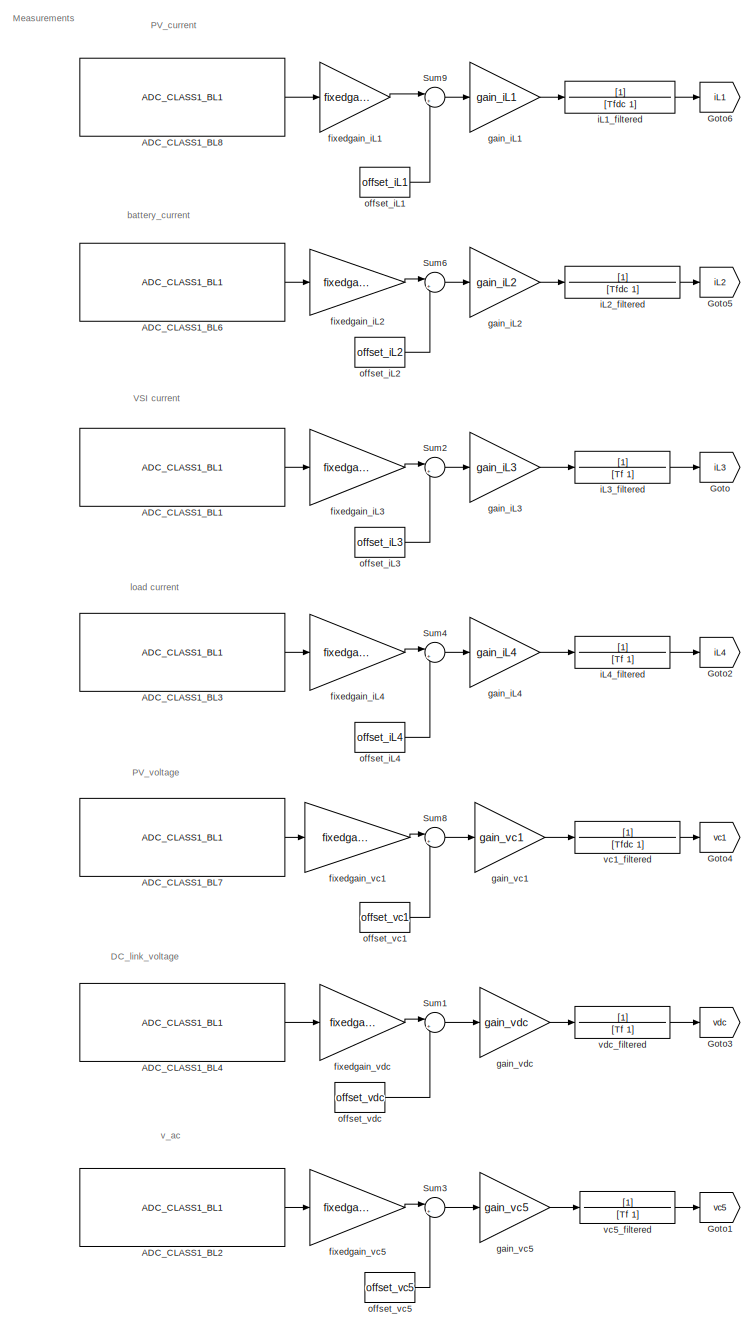
[diagram: root canvas - part 1/3, left side, full height]
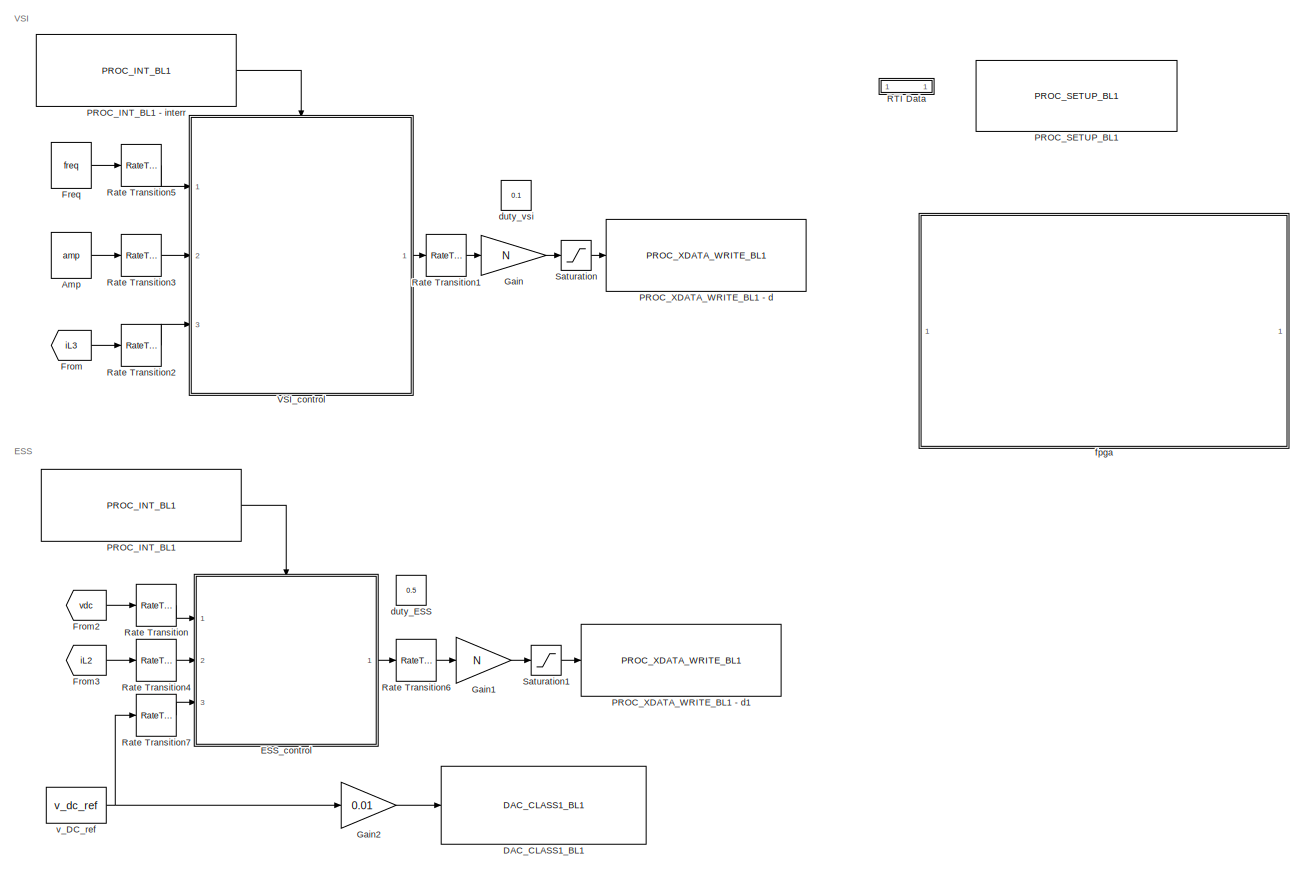
[diagram: root canvas - part 2/3, middle right region]
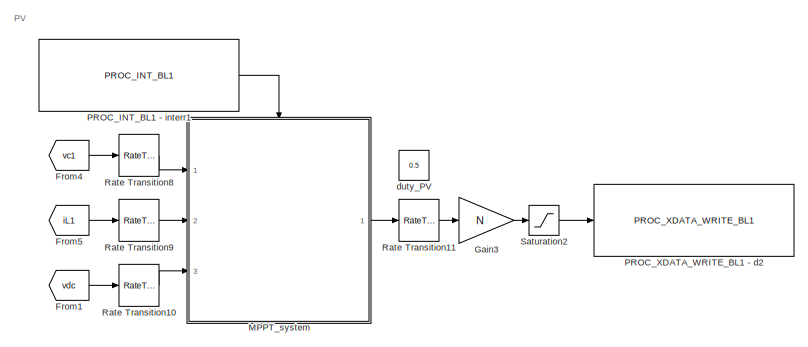
[diagram: root canvas - part 3/3, bottom center region]
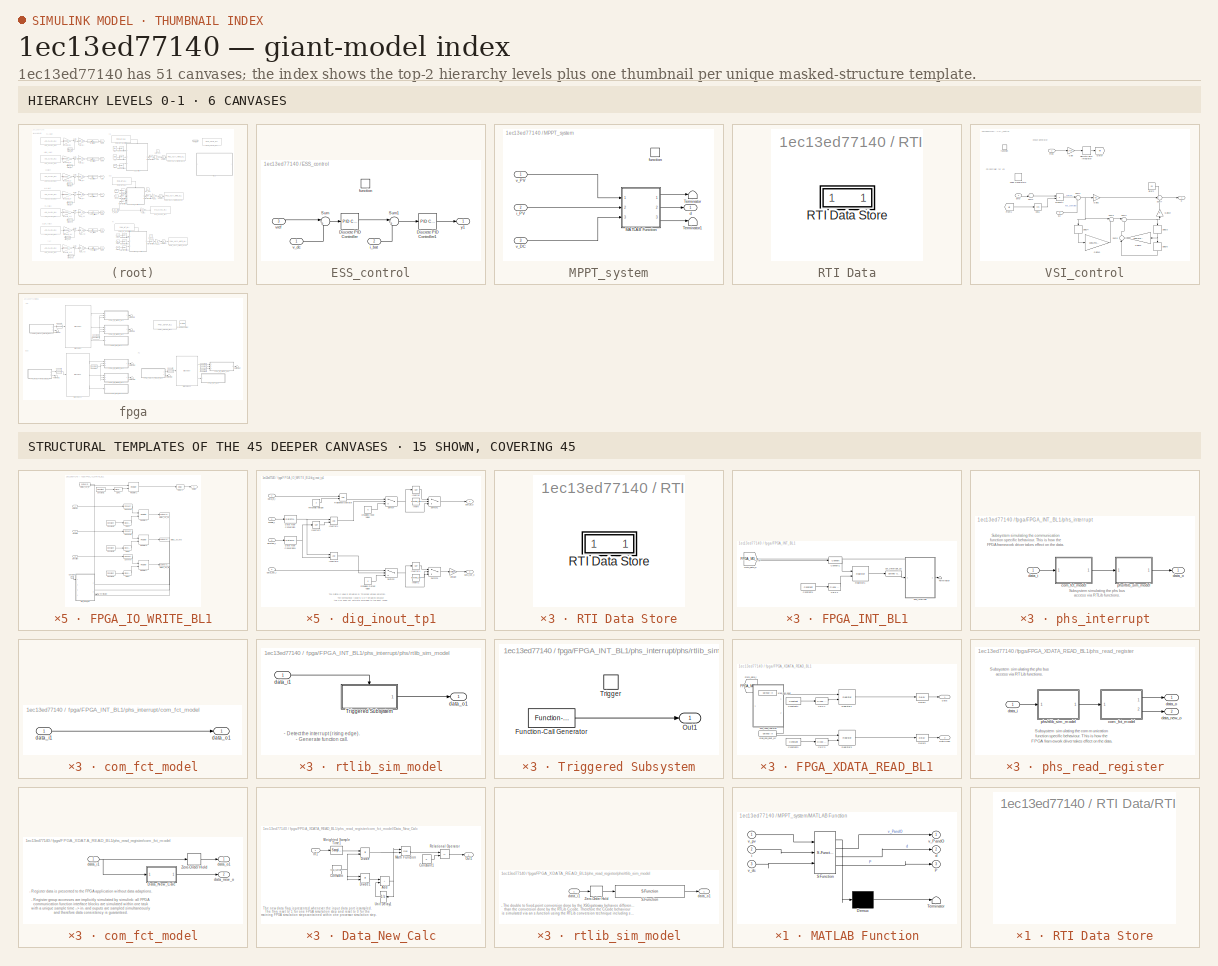
[diagram: thumbnail index - top-2 hierarchy levels (6 canvases) + 15 structural-template representatives of the remaining 45 canvases]
MODEL slx_1ec13ed77140
KIND model
CONFIG AbsTol = auto
CONFIG EnableMultiTasking = off
CONFIG FixedStep = N*T
CONFIG InitFcn = , if any(exist('rtifpga_mdlclblib', 'file') ~= 0), rtifpga_mdlclblib('Init', bdroot); end,\n
CONFIG MaxStep = auto
CONFIG MinStep = auto
CONFIG PostLoadFcn = , if any(exist('dsrtsu_mdlpostloadfcn', 'file') ~= 0), dsrtsu_mdlpostloadfcn('Execute', bdroot); end, \n
CONFIG RelTol = 1e-3
CONFIG SampleTimeConstraint = Unconstrained
CONFIG Solver = VariableStepAuto
CONFIG SolverName = VariableStepAuto
CONFIG StartTime = 0.0
CONFIG StopTime = Inf
WORKSPACE source: mxarray member
WORKSPACE FPGA_MG_sim_1_Register_1_1_1_write: Simulink.Signal (value not decoded)
WORKSPACE FPGA_MG_sim_1_Register_2_1_1_write: Simulink.Signal (value not decoded)
WORKSPACE FPGA_MG_sim_1_Register_3_1_1_write: Simulink.Signal (value not decoded)
BLOCK [Reference] ADC_CLASS1_BL1  REF=rti1202lib_adc_class1/ADC_CLASS1_BL1
  Ports = [0, 1]
  SourceBlock = rti1202lib_adc_class1/ADC_CLASS1_BL1
  SourceType = RTI
BLOCK [Reference] ADC_CLASS1_BL2  REF=rti1202lib_adc_class1/ADC_CLASS1_BL1
  Ports = [0, 1]
  SourceBlock = rti1202lib_adc_class1/ADC_CLASS1_BL1
  SourceType = RTI
BLOCK [Reference] ADC_CLASS1_BL3  REF=rti1202lib_adc_class1/ADC_CLASS1_BL1
  Ports = [0, 1]
  SourceBlock = rti1202lib_adc_class1/ADC_CLASS1_BL1
  SourceType = RTI
BLOCK [Reference] ADC_CLASS1_BL4  REF=rti1202lib_adc_class1/ADC_CLASS1_BL1
  Ports = [0, 1]
  SourceBlock = rti1202lib_adc_class1/ADC_CLASS1_BL1
  SourceType = RTI
BLOCK [Reference] ADC_CLASS1_BL6  REF=rti1202lib_adc_class1/ADC_CLASS1_BL1
  Ports = [0, 1]
  SourceBlock = rti1202lib_adc_class1/ADC_CLASS1_BL1
  SourceType = RTI
BLOCK [Reference] ADC_CLASS1_BL7  REF=rti1202lib_adc_class1/ADC_CLASS1_BL1
  Ports = [0, 1]
  SourceBlock = rti1202lib_adc_class1/ADC_CLASS1_BL1
  SourceType = RTI
BLOCK [Reference] ADC_CLASS1_BL8  REF=rti1202lib_adc_class1/ADC_CLASS1_BL1
  Ports = [0, 1]
  SourceBlock = rti1202lib_adc_class1/ADC_CLASS1_BL1
  SourceType = RTI
BLOCK [Constant] Amp
  Value = amp
BLOCK [Reference] DAC_CLASS1_BL1  REF=rti1202lib_dac_class1/DAC_CLASS1_BL1
  Ports = [1]
  SourceBlock = rti1202lib_dac_class1/DAC_CLASS1_BL1
  SourceType = RTI
BLOCK [SubSystem] ESS_control
  Ports = [3, 1, 0, 1]
  RequestExecContextInheritance = off
BLOCK [Reference] ESS_control/Discrete PID Controller  REF=simulink/Continuous/PID Controller
  Ports = [1, 1]
  SourceBlock = simulink/Continuous/PID Controller
  SourceProductBaseCode = SL
  SourceType = PID 1dof
BLOCK [Reference] ESS_control/Discrete PID Controller1  REF=simulink/Continuous/PID Controller
  Ports = [1, 1]
  SourceBlock = simulink/Continuous/PID Controller
  SourceProductBaseCode = SL
  SourceType = PID 1dof
BLOCK [Sum] ESS_control/Sum
  Inputs = |+-
  Ports = [2, 1]
BLOCK [Sum] ESS_control/Sum1
  Inputs = |+-
  Ports = [2, 1]
BLOCK [TriggerPort] ESS_control/function
  Ports = []
  StatesWhenEnabling = held
  TriggerType = function-call
  VariantControl = Variant
BLOCK [Inport] ESS_control/i_bat
  Port = 2
BLOCK [Inport] ESS_control/v_dc
BLOCK [Inport] ESS_control/vref
  Port = 3
BLOCK [Outport] ESS_control/y1
BLOCK [Constant] Freq
  Value = freq
BLOCK [From] From
  GotoTag = iL3
BLOCK [From] From1
  GotoTag = vdc
BLOCK [From] From2
  GotoTag = vdc
BLOCK [From] From3
  GotoTag = iL2
BLOCK [From] From4
  GotoTag = vc1
BLOCK [From] From5
  GotoTag = iL1
BLOCK [Gain] Gain
  Gain = N
  OutMax = maxd
  OutMin = mind
BLOCK [Gain] Gain1
  Gain = N
BLOCK [Gain] Gain2
  Gain = 0.01
BLOCK [Gain] Gain3
  Gain = N
BLOCK [Goto] Goto
  GotoTag = iL3
BLOCK [Goto] Goto1
  GotoTag = vc5
BLOCK [Goto] Goto2
  GotoTag = iL4
BLOCK [Goto] Goto3
  GotoTag = vdc
BLOCK [Goto] Goto4
  GotoTag = vc1
BLOCK [Goto] Goto5
  GotoTag = iL2
BLOCK [Goto] Goto6
  GotoTag = iL1
BLOCK [SubSystem] MPPT_system
  Ports = [3, 1, 0, 1]
  RequestExecContextInheritance = off
BLOCK [SubSystem] MPPT_system/MATLAB Function
  ErrorFcn = Stateflow.Translate.translate
  PermitHierarchicalResolution = ExplicitOnly
  Ports = [3, 3]
  RequestExecContextInheritance = off
  SFBlockType = MATLAB Function
  TreatAsAtomicUnit = on
BLOCK [Demux] MPPT_system/MATLAB Function/ Demux 
  Outputs = 1
  Ports = [1, 1]
BLOCK [S-Function] MPPT_system/MATLAB Function/ SFunction 
  EnableBusSupport = on
  FunctionName = sf_sfun
  PortCounts = [3 4]
  Ports = [3, 4]
  SFcnIsStateOwnerBlock = off
  SFunctionDeploymentMode = off
  Tag = Stateflow S-Function 2
BLOCK [Terminator] MPPT_system/MATLAB Function/ Terminator 
BLOCK [Outport] MPPT_system/MATLAB Function/P
  Port = 3
BLOCK [Outport] MPPT_system/MATLAB Function/d
  Port = 2
BLOCK [Inport] MPPT_system/MATLAB Function/i
  Port = 2
BLOCK [Outport] MPPT_system/MATLAB Function/v_PandO
BLOCK [Inport] MPPT_system/MATLAB Function/v_dc
  Port = 3
BLOCK [Inport] MPPT_system/MATLAB Function/v_pv
BLOCK [Terminator] MPPT_system/Terminator
BLOCK [Terminator] MPPT_system/Terminator1
BLOCK [Outport] MPPT_system/d
BLOCK [TriggerPort] MPPT_system/function
  Ports = []
  StatesWhenEnabling = held
  TriggerType = function-call
  VariantControl = Variant
BLOCK [Inport] MPPT_system/i_PV
  Port = 2
BLOCK [Inport] MPPT_system/v_DC
  Port = 3
BLOCK [Inport] MPPT_system/v_PV
BLOCK [Reference] PROC_INT_BL1  REF=rtiproclib/PROC_INT_BL1
  Ports = [0, 1]
  SourceBlock = rtiproclib/PROC_INT_BL1
  SourceType = RTI
BLOCK [Reference] PROC_INT_BL1 - interr  REF=rtiproclib/PROC_INT_BL1
  Ports = [0, 1]
  SourceBlock = rtiproclib/PROC_INT_BL1
  SourceType = RTI
BLOCK [Reference] PROC_INT_BL1 - interr1  REF=rtiproclib/PROC_INT_BL1
  Ports = [0, 1]
  SourceBlock = rtiproclib/PROC_INT_BL1
  SourceType = RTI
BLOCK [Reference] PROC_SETUP_BL1  REF=rtiproclib/PROC_SETUP_BL1
  AttributesFormatString = FPGA-Build / Offline Simulation
  Ports = []
  SourceBlock = rtiproclib/PROC_SETUP_BL1
  SourceType = RTI
BLOCK [Reference] PROC_XDATA_WRITE_BL1 - d  REF=rtiproclib/PROC_XDATA_WRITE_BL1
  Ports = [1]
  SourceBlock = rtiproclib/PROC_XDATA_WRITE_BL1
  SourceType = RTI
BLOCK [Reference] PROC_XDATA_WRITE_BL1 - d1  REF=rtiproclib/PROC_XDATA_WRITE_BL1
  Ports = [1]
  SourceBlock = rtiproclib/PROC_XDATA_WRITE_BL1
  SourceType = RTI
BLOCK [Reference] PROC_XDATA_WRITE_BL1 - d2  REF=rtiproclib/PROC_XDATA_WRITE_BL1
  Ports = [1]
  SourceBlock = rtiproclib/PROC_XDATA_WRITE_BL1
  SourceType = RTI
BLOCK [SubSystem] RTI Data
  CopyFcn = if exist('rtidc'), try,  rtidc('DataHostBlockClbCopy', gcbh); catch, disp(['Warning: ''CopyFcn'' for RTI Data block failed: ' lasterr]); end, end,
  DeleteFcn = if exist('rtidc'), try,  rtidc('DataHostBlockClbDelete', gcbh); catch, disp(['Warning: ''DeleteFcn'' for RTI Data block failed: ' lasterr]); end, end,
  LoadFcn = if exist('rtidc'), try,  rtidc('DataHostBlockClbLoad', gcbh); catch, disp(['Warning: ''LoadFcn'' for RTI Data block failed: ' lasterr]); end, end,
  ModelCloseFcn = if exist('rtidc'), try,  rtidc('DataHostBlockClbModelClose', gcbh); catch, disp(['Warning: ''ModelCloseFcn'' for RTI Data block failed: ' lasterr]); end, end,
  NameChangeFcn = if exist('rtidc'), try,  rtidc('DataHostBlockClbNameChange', gcbh); catch, disp(['Warning: ''NameChangeFcn'' for RTI Data block failed: ' lasterr]); end, end,
  Ports = []
  PostSaveFcn = if exist('rtidc'), try,  rtidc('DataHostBlockClbPostSave', gcbh); catch, disp(['Warning: ''PostSaveFcn'' for RTI Data block failed: ' lasterr]); end, end,
  PreSaveFcn = if exist('rtidc'), try,  rtidc('DataHostBlockClbPreSave', gcbh); catch, disp(['Warning: ''PreSaveFcn'' for RTI Data block failed: ' lasterr]); end, end,
  RequestExecContextInheritance = off
  Tag = struct('RTIDataServer',struct('RTIDataServerVs','2','RTIModelDescription','struct(''main'',''MG_sim'',''sub'','''',''isMp'',0)'))
BLOCK [SubSystem] RTI Data/RTI Data Store
  Ports = []
  RequestExecContextInheritance = off
  Tag = struct('public',struct('sub',struct('name',{{'MG_sim'}},'data',{{struct('TH',struct('thTaskInfo',struct('taskType',{'TIMER','HWINT','TMRINT','SWINT','GLINT'},'tasksNumOf',{1,3,0,0,0},'srcIds',{{'TIMERA'},{'FPGACL1FPGA_INTP0Ch1','FPGACL1FPGA_INTP0Ch2','FPGACL1FPGA_INTP0Ch0'},{},{},{}},'taskNames',{{['Timer Task 1']},{'PROC_INT_BL1',['PROC_INT_BL1 - interr'],['PROC_INT_BL1 - interr1']},{},{},{}})),'...<+2231ch>
BLOCK [SubSystem] RTI Data/RTI Data Store/RTI Data Store
  Ports = []
  RequestExecContextInheritance = off
BLOCK [SubSystem] RTI Data/RTI Data Store/RTI Data Store/RTI Data Store
  Ports = []
  RequestExecContextInheritance = off
BLOCK [SubSystem] RTI Data/RTI Data Store/RTI Data Store/RTI Data Store/RTI Data Store
  Ports = []
  RequestExecContextInheritance = off
BLOCK [RateTransition] Rate Transition
  Deterministic = off
BLOCK [RateTransition] Rate Transition1
  Deterministic = off
BLOCK [RateTransition] Rate Transition10
  Deterministic = off
  OutPortSampleTimeOpt = Inherit
BLOCK [RateTransition] Rate Transition11
  Deterministic = off
  InitialCondition = 0.5
  OutPortSampleTimeOpt = Inherit
BLOCK [RateTransition] Rate Transition2
  Deterministic = off
BLOCK [RateTransition] Rate Transition3
  Deterministic = off
BLOCK [RateTransition] Rate Transition4
  Deterministic = off
BLOCK [RateTransition] Rate Transition5
  Deterministic = off
BLOCK [RateTransition] Rate Transition6
  Deterministic = off
BLOCK [RateTransition] Rate Transition7
  Deterministic = off
BLOCK [RateTransition] Rate Transition8
  Deterministic = off
  OutPortSampleTimeOpt = Inherit
BLOCK [RateTransition] Rate Transition9
  Deterministic = off
  OutPortSampleTimeOpt = Inherit
BLOCK [Saturate] Saturation
  LowerLimit = mind
  UpperLimit = maxd
BLOCK [Saturate] Saturation1
  LowerLimit = mind
  UpperLimit = maxd
BLOCK [Saturate] Saturation2
  LinearizeAsGain = off
  LowerLimit = mind
  UpperLimit = maxd
BLOCK [Sum] Sum1
  Inputs = |++
  Ports = [2, 1]
BLOCK [Sum] Sum2
  Inputs = |++
  Ports = [2, 1]
BLOCK [Sum] Sum3
  Inputs = |++
  Ports = [2, 1]
BLOCK [Sum] Sum4
  Inputs = |++
  Ports = [2, 1]
BLOCK [Sum] Sum6
  Inputs = |++
  Ports = [2, 1]
BLOCK [Sum] Sum8
  Inputs = |++
  Ports = [2, 1]
BLOCK [Sum] Sum9
  Inputs = |++
  Ports = [2, 1]
BLOCK [SubSystem] VSI_control
  Ports = [3, 1, 0, 1]
  RequestExecContextInheritance = off
BLOCK [Trigonometry] VSI_control/Cos1
  Operator = cos
  Ports = [1, 1]
BLOCK [Delay] VSI_control/Delay3
  DelayLength = 1
  InputPortMap = u0
  NameLocation = left
  Ports = [1, 1]
BLOCK [Delay] VSI_control/Delay4
  DelayLength = 1
  InputPortMap = u0
  NameLocation = left
  Ports = [1, 1]
BLOCK [Delay] VSI_control/Delay5
  DelayLength = 1
  InputPortMap = u0
  NameLocation = left
  Ports = [1, 1]
BLOCK [DiscreteIntegrator] VSI_control/Discrete-Time Integrator
  ICPrevOutput = DiscIntNeverNeededParam
  ICPrevScaledInput = DiscIntNeverNeededParam
  InitialConditionSetting = Auto
  Ports = [1, 1]
  SampleTime = -1
BLOCK [Inport] VSI_control/Freq
BLOCK [From] VSI_control/From1
  GotoTag = wt
BLOCK [Gain] VSI_control/Gain
  Gain = 2*pi
BLOCK [Gain] VSI_control/Gain10
  Gain = cos(2*pi*50*N*T)
BLOCK [Gain] VSI_control/Gain12
  Gain = cos(2*pi*50*N*T)
BLOCK [Gain] VSI_control/Gain14
  Gain = Ki
  NameLocation = right
BLOCK [Gain] VSI_control/Gain2
  Gain = Kp
BLOCK [Goto] VSI_control/Goto7
  GotoTag = wt
BLOCK [Product] VSI_control/Product1
  Ports = [2, 1]
BLOCK [DiscretePulseGenerator] VSI_control/Pulse Generator2
  Amplitude = 0.5
  Period = 5000
  Ports = [0, 1]
  PulseWidth = 2500
  SampleTime = -1
BLOCK [Sum] VSI_control/Sum1
  Inputs = |+-
  Ports = [2, 1]
BLOCK [Sum] VSI_control/Sum2
  Inputs = ++|
  Ports = [2, 1]
BLOCK [Sum] VSI_control/Sum3
  Inputs = |+-
  Ports = [2, 1]
BLOCK [Sum] VSI_control/Sum4
  Inputs = |++
  Ports = [2, 1]
BLOCK [Sum] VSI_control/Sum5
  Inputs = |-+
  NameLocation = left
  Ports = [2, 1]
BLOCK [Sum] VSI_control/Sum7
  Inputs = +++
  Ports = [3, 1]
BLOCK [Inport] VSI_control/amp
  Port = 2
BLOCK [Outport] VSI_control/d
BLOCK [TriggerPort] VSI_control/function
  Ports = []
  StatesWhenEnabling = held
  TriggerType = function-call
  VariantControl = Variant
BLOCK [Inport] VSI_control/iL3
  Port = 3
BLOCK [Constant] VSI_control/idref2
  Value = 0.5
BLOCK [Constant] duty_ESS
  Value = 0.5
BLOCK [Constant] duty_PV
  Value = 0.5
BLOCK [Constant] duty_vsi
  Value = 0.1
BLOCK [Gain] fixedgain_iL1
  Gain = fixedgain_i
BLOCK [Gain] fixedgain_iL2
  Gain = fixedgain_i
BLOCK [Gain] fixedgain_iL3
  Gain = fixedgain_i
BLOCK [Gain] fixedgain_iL4
  Gain = fixedgain_i
BLOCK [Gain] fixedgain_vc1
  Gain = fixedgain_vc1
BLOCK [Gain] fixedgain_vc5
  Gain = fixedgain_vc5
BLOCK [Gain] fixedgain_vdc
  Gain = fixedgain_vdc
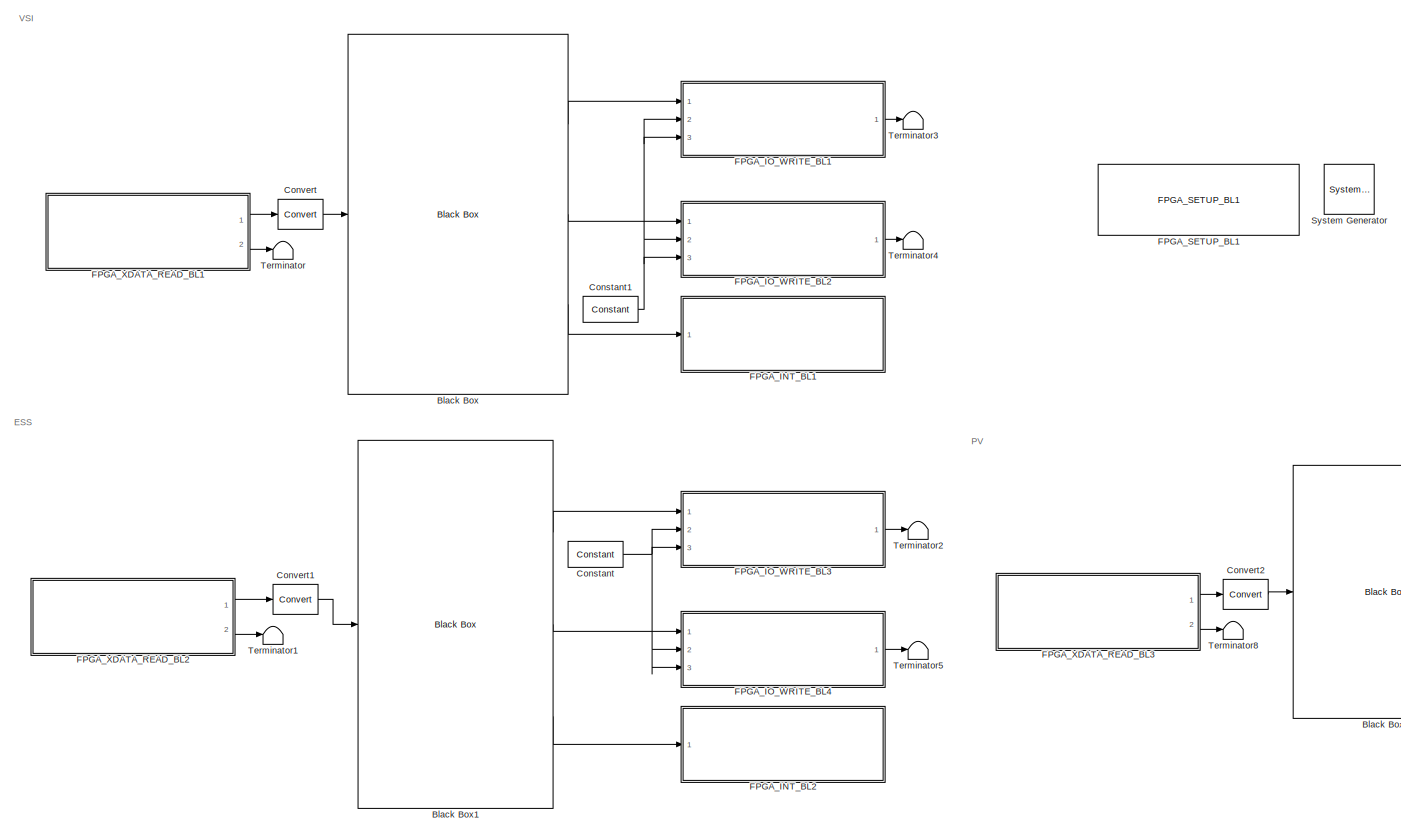
[diagram: fpga - part 1/2, most of the canvas]
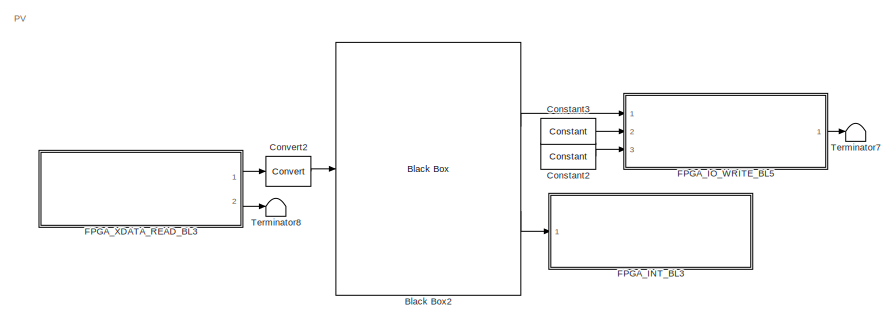
[diagram: fpga - part 2/2, bottom right region]
BLOCK [SubSystem] fpga
  Ports = []
  RequestExecContextInheritance = off
BLOCK [Reference] fpga/ System Generator  REF=xbsIndex_r4/ System Generator
  AttributesFormatString = System\nGenerator
  Ports = []
  SourceBlock = xbsIndex_r4/ System Generator
  SourceType = Xilinx System Generator Block
  Tag = genX
  UserDataPersistent = on
BLOCK [Reference] fpga/Black Box  REF=xbsIndex_r4/Black Box
  Ports = [1, 3]
  SourceBlock = xbsIndex_r4/Black Box
  SourceType = Xilinx Black Box Block
BLOCK [Reference] fpga/Black Box1  REF=xbsIndex_r4/Black Box
  Ports = [1, 3]
  SourceBlock = xbsIndex_r4/Black Box
  SourceType = Xilinx Black Box Block
BLOCK [Reference] fpga/Black Box2  REF=xbsIndex_r4/Black Box
  Ports = [1, 2]
  SourceBlock = xbsIndex_r4/Black Box
  SourceType = Xilinx Black Box Block
BLOCK [Reference] fpga/Constant  REF=xbsIndex_r4/Constant
  Ports = [0, 1]
  SourceBlock = xbsIndex_r4/Constant
  SourceType = Xilinx Constant Block Block
BLOCK [Reference] fpga/Constant1  REF=xbsIndex_r4/Constant
  Ports = [0, 1]
  SourceBlock = xbsIndex_r4/Constant
  SourceType = Xilinx Constant Block Block
BLOCK [Reference] fpga/Constant2  REF=xbsIndex_r4/Constant
  Ports = [0, 1]
  SourceBlock = xbsIndex_r4/Constant
  SourceType = Xilinx Constant Block Block
BLOCK [Reference] fpga/Constant3  REF=xbsIndex_r4/Constant
  Ports = [0, 1]
  SourceBlock = xbsIndex_r4/Constant
  SourceType = Xilinx Constant Block Block
BLOCK [Reference] fpga/Convert  REF=xbsIndex_r4/Convert
  Ports = [1, 1]
  SourceBlock = xbsIndex_r4/Convert
  SourceType = Xilinx Type Converter Block
BLOCK [Reference] fpga/Convert1  REF=xbsIndex_r4/Convert
  Ports = [1, 1]
  SourceBlock = xbsIndex_r4/Convert
  SourceType = Xilinx Type Converter Block
BLOCK [Reference] fpga/Convert2  REF=xbsIndex_r4/Convert
  Ports = [1, 1]
  SourceBlock = xbsIndex_r4/Convert
  SourceType = Xilinx Type Converter Block
BLOCK [SubSystem] fpga/FPGA_INT_BL1
  CloseFcn = try, rti_fpga_blk_closefcn(gcbh); catch,errordlg({lasterr, '','Please check your RTI installation.'},['Error: ' upper(bdroot)], 'replace'); end
  CopyFcn = try, rti_fpga_blk_copyfcn(gcbh); catch,errordlg({lasterr, '','Please check your RTI installation.'},['Error: ' upper(bdroot)], 'replace'); end
  DeleteFcn = try, rti_fpga_blk_deletefcn(gcbh); catch,errordlg({lasterr, '','Please check your RTI installation.'},['Error: ' upper(bdroot)], 'replace'); end
  InitFcn = try, rti_fpga_blk_initfcn(gcbh); catch,errordlg({lasterr, '','Please check your RTI installation.'},['Error: ' upper(bdroot)], 'replace'); end
  LoadFcn = try, rti_fpga_blk_loadfcn(gcbh); catch,errordlg({lasterr, '','Please check your RTI installation.'},['Error: ' upper(bdroot)], 'replace'); end
  MaskHideContents = on
  ModelCloseFcn = try, rti_fpga_blk_modelclosefcn(gcbh); catch,errordlg({lasterr, '','Please check your RTI installation.'},['Error: ' upper(bdroot)], 'replace'); end
  NameChangeFcn = try, rti_fpga_blk_namechangefcn(gcbh); catch,errordlg({lasterr, '','Please check your RTI installation.'},['Error: ' upper(bdroot)], 'replace'); end
  OpenFcn = try, rti_fpga_blk_openfcn(gcbh); catch,errordlg({lasterr, '','Please check your RTI installation.'},['Error: ' upper(bdroot)], 'replace'); end
  ParentCloseFcn = try, rti_fpga_blk_parentclosefcn(gcbh); catch,errordlg({lasterr, '','Please check your RTI installation.'},['Error: ' upper(bdroot)], 'replace'); end
  Ports = [1]
  PreSaveFcn = try, rti_fpga_blk_presavefcn(gcbh); catch,errordlg({lasterr, '','Please check your RTI installation.'},['Error: ' upper(bdroot)], 'replace'); end
  RequestExecContextInheritance = off
  StartFcn = try, rti_fpga_blk_startfcn(gcbh); catch,errordlg({lasterr, '','Please check your RTI installation.'},['Error: ' upper(bdroot)], 'replace'); end
BLOCK [Reference] fpga/FPGA_INT_BL1/CEP1  REF=xbsIndex_r4/Clock Enable Probe
  Ports = [1, 1]
  SourceBlock = xbsIndex_r4/Clock Enable Probe
  SourceType = Xilinx Clock Enable Probe Block
BLOCK [Reference] fpga/FPGA_INT_BL1/Constant1  REF=xbsIndex_r4/Constant
  Ports = [0, 1]
  SourceBlock = xbsIndex_r4/Constant
  SourceType = Xilinx Constant Block Block
BLOCK [Reference] fpga/FPGA_INT_BL1/Convert1  REF=xbsIndex_r4/Convert
  Ports = [1, 1]
  SourceBlock = xbsIndex_r4/Convert
  SourceType = Xilinx Type Converter Block
BLOCK [Goto] fpga/FPGA_INT_BL1/Goto_data_o
  GotoTag = FPGA_MG_sim_1_Interrupt_3_1_write
  TagVisibility = global
BLOCK [Inport] fpga/FPGA_INT_BL1/Int
BLOCK [Reference] fpga/FPGA_INT_BL1/Register1  REF=xbsIndex_r4/Register
  Ports = [2, 1]
  SourceBlock = xbsIndex_r4/Register
  SourceType = Xilinx Register Block
BLOCK [Terminator] fpga/FPGA_INT_BL1/Terminator
BLOCK [SubSystem] fpga/FPGA_INT_BL1/phs_interrupt
  Ports = [1, 1]
  RequestExecContextInheritance = off
BLOCK [SubSystem] fpga/FPGA_INT_BL1/phs_interrupt/com_fct_model
  Ports = [1, 1]
  RequestExecContextInheritance = off
BLOCK [Inport] fpga/FPGA_INT_BL1/phs_interrupt/com_fct_model/data_i1
BLOCK [Outport] fpga/FPGA_INT_BL1/phs_interrupt/com_fct_model/data_o1
  VectorParamsAs1DForOutWhenUnconnected = off
BLOCK [Inport] fpga/FPGA_INT_BL1/phs_interrupt/data_i
BLOCK [Outport] fpga/FPGA_INT_BL1/phs_interrupt/data_o
  VectorParamsAs1DForOutWhenUnconnected = off
BLOCK [SubSystem] fpga/FPGA_INT_BL1/phs_interrupt/phs//rtlib_sim_model
  Ports = [1, 1]
  RequestExecContextInheritance = off
BLOCK [SubSystem] fpga/FPGA_INT_BL1/phs_interrupt/phs//rtlib_sim_model/Triggered Subsystem
  Ports = [0, 1, 0, 1]
  RequestExecContextInheritance = off
  TreatAsAtomicUnit = on
BLOCK [Reference] fpga/FPGA_INT_BL1/phs_interrupt/phs//rtlib_sim_model/Triggered Subsystem/Function-Call Generator  REF=simulink/Ports &
Subsystems/Function-Call
Generator
  Ports = [0, 1]
  SourceBlock = simulink/Ports &\nSubsystems/Function-Call\nGenerator
  SourceProductBaseCode = SL
  SourceType = Function-Call Generator
BLOCK [Outport] fpga/FPGA_INT_BL1/phs_interrupt/phs//rtlib_sim_model/Triggered Subsystem/Out1
  VectorParamsAs1DForOutWhenUnconnected = off
BLOCK [TriggerPort] fpga/FPGA_INT_BL1/phs_interrupt/phs//rtlib_sim_model/Triggered Subsystem/Trigger
  Ports = []
  StatesWhenEnabling = held
  VariantControl = (inherit)
BLOCK [Inport] fpga/FPGA_INT_BL1/phs_interrupt/phs//rtlib_sim_model/data_i1
BLOCK [Outport] fpga/FPGA_INT_BL1/phs_interrupt/phs//rtlib_sim_model/data_o1
  VectorParamsAs1DForOutWhenUnconnected = off
BLOCK [Reference] fpga/FPGA_INT_BL1/usr_interrupt_02  REF=xbsIndex_r4/Gateway Out
  Ports = [1, 1]
  SourceBlock = xbsIndex_r4/Gateway Out
  SourceType = Xilinx Gateway Out Block
BLOCK [SubSystem] fpga/FPGA_INT_BL2
  CloseFcn = try, rti_fpga_blk_closefcn(gcbh); catch,errordlg({lasterr, '','Please check your RTI installation.'},['Error: ' upper(bdroot)], 'replace'); end
  CopyFcn = try, rti_fpga_blk_copyfcn(gcbh); catch,errordlg({lasterr, '','Please check your RTI installation.'},['Error: ' upper(bdroot)], 'replace'); end
  DeleteFcn = try, rti_fpga_blk_deletefcn(gcbh); catch,errordlg({lasterr, '','Please check your RTI installation.'},['Error: ' upper(bdroot)], 'replace'); end
  InitFcn = try, rti_fpga_blk_initfcn(gcbh); catch,errordlg({lasterr, '','Please check your RTI installation.'},['Error: ' upper(bdroot)], 'replace'); end
  LoadFcn = try, rti_fpga_blk_loadfcn(gcbh); catch,errordlg({lasterr, '','Please check your RTI installation.'},['Error: ' upper(bdroot)], 'replace'); end
  MaskHideContents = on
  ModelCloseFcn = try, rti_fpga_blk_modelclosefcn(gcbh); catch,errordlg({lasterr, '','Please check your RTI installation.'},['Error: ' upper(bdroot)], 'replace'); end
  NameChangeFcn = try, rti_fpga_blk_namechangefcn(gcbh); catch,errordlg({lasterr, '','Please check your RTI installation.'},['Error: ' upper(bdroot)], 'replace'); end
  OpenFcn = try, rti_fpga_blk_openfcn(gcbh); catch,errordlg({lasterr, '','Please check your RTI installation.'},['Error: ' upper(bdroot)], 'replace'); end
  ParentCloseFcn = try, rti_fpga_blk_parentclosefcn(gcbh); catch,errordlg({lasterr, '','Please check your RTI installation.'},['Error: ' upper(bdroot)], 'replace'); end
  Ports = [1]
  PreSaveFcn = try, rti_fpga_blk_presavefcn(gcbh); catch,errordlg({lasterr, '','Please check your RTI installation.'},['Error: ' upper(bdroot)], 'replace'); end
  RequestExecContextInheritance = off
  StartFcn = try, rti_fpga_blk_startfcn(gcbh); catch,errordlg({lasterr, '','Please check your RTI installation.'},['Error: ' upper(bdroot)], 'replace'); end
BLOCK [Reference] fpga/FPGA_INT_BL2/CEP1  REF=xbsIndex_r4/Clock Enable Probe
  Ports = [1, 1]
  SourceBlock = xbsIndex_r4/Clock Enable Probe
  SourceType = Xilinx Clock Enable Probe Block
BLOCK [Reference] fpga/FPGA_INT_BL2/Constant1  REF=xbsIndex_r4/Constant
  Ports = [0, 1]
  SourceBlock = xbsIndex_r4/Constant
  SourceType = Xilinx Constant Block Block
BLOCK [Reference] fpga/FPGA_INT_BL2/Convert1  REF=xbsIndex_r4/Convert
  Ports = [1, 1]
  SourceBlock = xbsIndex_r4/Convert
  SourceType = Xilinx Type Converter Block
BLOCK [Goto] fpga/FPGA_INT_BL2/Goto_data_o
  GotoTag = FPGA_MG_sim_1_Interrupt_2_1_write
  TagVisibility = global
BLOCK [Inport] fpga/FPGA_INT_BL2/Int
BLOCK [Reference] fpga/FPGA_INT_BL2/Register1  REF=xbsIndex_r4/Register
  Ports = [2, 1]
  SourceBlock = xbsIndex_r4/Register
  SourceType = Xilinx Register Block
BLOCK [Terminator] fpga/FPGA_INT_BL2/Terminator
BLOCK [SubSystem] fpga/FPGA_INT_BL2/phs_interrupt
  Ports = [1, 1]
  RequestExecContextInheritance = off
BLOCK [SubSystem] fpga/FPGA_INT_BL2/phs_interrupt/com_fct_model
  Ports = [1, 1]
  RequestExecContextInheritance = off
BLOCK [Inport] fpga/FPGA_INT_BL2/phs_interrupt/com_fct_model/data_i1
BLOCK [Outport] fpga/FPGA_INT_BL2/phs_interrupt/com_fct_model/data_o1
  VectorParamsAs1DForOutWhenUnconnected = off
BLOCK [Inport] fpga/FPGA_INT_BL2/phs_interrupt/data_i
BLOCK [Outport] fpga/FPGA_INT_BL2/phs_interrupt/data_o
  VectorParamsAs1DForOutWhenUnconnected = off
BLOCK [SubSystem] fpga/FPGA_INT_BL2/phs_interrupt/phs//rtlib_sim_model
  Ports = [1, 1]
  RequestExecContextInheritance = off
BLOCK [SubSystem] fpga/FPGA_INT_BL2/phs_interrupt/phs//rtlib_sim_model/Triggered Subsystem
  Ports = [0, 1, 0, 1]
  RequestExecContextInheritance = off
  TreatAsAtomicUnit = on
BLOCK [Reference] fpga/FPGA_INT_BL2/phs_interrupt/phs//rtlib_sim_model/Triggered Subsystem/Function-Call Generator  REF=simulink/Ports &
Subsystems/Function-Call
Generator
  Ports = [0, 1]
  SourceBlock = simulink/Ports &\nSubsystems/Function-Call\nGenerator
  SourceProductBaseCode = SL
  SourceType = Function-Call Generator
BLOCK [Outport] fpga/FPGA_INT_BL2/phs_interrupt/phs//rtlib_sim_model/Triggered Subsystem/Out1
  VectorParamsAs1DForOutWhenUnconnected = off
BLOCK [TriggerPort] fpga/FPGA_INT_BL2/phs_interrupt/phs//rtlib_sim_model/Triggered Subsystem/Trigger
  Ports = []
  StatesWhenEnabling = held
  VariantControl = (inherit)
BLOCK [Inport] fpga/FPGA_INT_BL2/phs_interrupt/phs//rtlib_sim_model/data_i1
BLOCK [Outport] fpga/FPGA_INT_BL2/phs_interrupt/phs//rtlib_sim_model/data_o1
  VectorParamsAs1DForOutWhenUnconnected = off
BLOCK [Reference] fpga/FPGA_INT_BL2/usr_interrupt_01  REF=xbsIndex_r4/Gateway Out
  Ports = [1, 1]
  SourceBlock = xbsIndex_r4/Gateway Out
  SourceType = Xilinx Gateway Out Block
BLOCK [SubSystem] fpga/FPGA_INT_BL3
  CloseFcn = try, rti_fpga_blk_closefcn(gcbh); catch,errordlg({lasterr, '','Please check your RTI installation.'},['Error: ' upper(bdroot)], 'replace'); end
  CopyFcn = try, rti_fpga_blk_copyfcn(gcbh); catch,errordlg({lasterr, '','Please check your RTI installation.'},['Error: ' upper(bdroot)], 'replace'); end
  DeleteFcn = try, rti_fpga_blk_deletefcn(gcbh); catch,errordlg({lasterr, '','Please check your RTI installation.'},['Error: ' upper(bdroot)], 'replace'); end
  InitFcn = try, rti_fpga_blk_initfcn(gcbh); catch,errordlg({lasterr, '','Please check your RTI installation.'},['Error: ' upper(bdroot)], 'replace'); end
  LoadFcn = try, rti_fpga_blk_loadfcn(gcbh); catch,errordlg({lasterr, '','Please check your RTI installation.'},['Error: ' upper(bdroot)], 'replace'); end
  MaskHideContents = on
  ModelCloseFcn = try, rti_fpga_blk_modelclosefcn(gcbh); catch,errordlg({lasterr, '','Please check your RTI installation.'},['Error: ' upper(bdroot)], 'replace'); end
  NameChangeFcn = try, rti_fpga_blk_namechangefcn(gcbh); catch,errordlg({lasterr, '','Please check your RTI installation.'},['Error: ' upper(bdroot)], 'replace'); end
  OpenFcn = try, rti_fpga_blk_openfcn(gcbh); catch,errordlg({lasterr, '','Please check your RTI installation.'},['Error: ' upper(bdroot)], 'replace'); end
  ParentCloseFcn = try, rti_fpga_blk_parentclosefcn(gcbh); catch,errordlg({lasterr, '','Please check your RTI installation.'},['Error: ' upper(bdroot)], 'replace'); end
  Ports = [1]
  PreSaveFcn = try, rti_fpga_blk_presavefcn(gcbh); catch,errordlg({lasterr, '','Please check your RTI installation.'},['Error: ' upper(bdroot)], 'replace'); end
  RequestExecContextInheritance = off
  StartFcn = try, rti_fpga_blk_startfcn(gcbh); catch,errordlg({lasterr, '','Please check your RTI installation.'},['Error: ' upper(bdroot)], 'replace'); end
BLOCK [Reference] fpga/FPGA_INT_BL3/CEP1  REF=xbsIndex_r4/Clock Enable Probe
  Ports = [1, 1]
  SourceBlock = xbsIndex_r4/Clock Enable Probe
  SourceType = Xilinx Clock Enable Probe Block
BLOCK [Reference] fpga/FPGA_INT_BL3/Constant1  REF=xbsIndex_r4/Constant
  Ports = [0, 1]
  SourceBlock = xbsIndex_r4/Constant
  SourceType = Xilinx Constant Block Block
BLOCK [Reference] fpga/FPGA_INT_BL3/Convert1  REF=xbsIndex_r4/Convert
  Ports = [1, 1]
  SourceBlock = xbsIndex_r4/Convert
  SourceType = Xilinx Type Converter Block
BLOCK [Goto] fpga/FPGA_INT_BL3/Goto_data_o
  GotoTag = FPGA_MG_sim_1_Interrupt_1_1_write
  TagVisibility = global
BLOCK [Inport] fpga/FPGA_INT_BL3/Int
BLOCK [Reference] fpga/FPGA_INT_BL3/Register1  REF=xbsIndex_r4/Register
  Ports = [2, 1]
  SourceBlock = xbsIndex_r4/Register
  SourceType = Xilinx Register Block
BLOCK [Terminator] fpga/FPGA_INT_BL3/Terminator
BLOCK [SubSystem] fpga/FPGA_INT_BL3/phs_interrupt
  Ports = [1, 1]
  RequestExecContextInheritance = off
BLOCK [SubSystem] fpga/FPGA_INT_BL3/phs_interrupt/com_fct_model
  Ports = [1, 1]
  RequestExecContextInheritance = off
BLOCK [Inport] fpga/FPGA_INT_BL3/phs_interrupt/com_fct_model/data_i1
BLOCK [Outport] fpga/FPGA_INT_BL3/phs_interrupt/com_fct_model/data_o1
  VectorParamsAs1DForOutWhenUnconnected = off
BLOCK [Inport] fpga/FPGA_INT_BL3/phs_interrupt/data_i
BLOCK [Outport] fpga/FPGA_INT_BL3/phs_interrupt/data_o
  VectorParamsAs1DForOutWhenUnconnected = off
BLOCK [SubSystem] fpga/FPGA_INT_BL3/phs_interrupt/phs//rtlib_sim_model
  Ports = [1, 1]
  RequestExecContextInheritance = off
BLOCK [SubSystem] fpga/FPGA_INT_BL3/phs_interrupt/phs//rtlib_sim_model/Triggered Subsystem
  Ports = [0, 1, 0, 1]
  RequestExecContextInheritance = off
  TreatAsAtomicUnit = on
BLOCK [Reference] fpga/FPGA_INT_BL3/phs_interrupt/phs//rtlib_sim_model/Triggered Subsystem/Function-Call Generator  REF=simulink/Ports &
Subsystems/Function-Call
Generator
  Ports = [0, 1]
  SourceBlock = simulink/Ports &\nSubsystems/Function-Call\nGenerator
  SourceProductBaseCode = SL
  SourceType = Function-Call Generator
BLOCK [Outport] fpga/FPGA_INT_BL3/phs_interrupt/phs//rtlib_sim_model/Triggered Subsystem/Out1
  VectorParamsAs1DForOutWhenUnconnected = off
BLOCK [TriggerPort] fpga/FPGA_INT_BL3/phs_interrupt/phs//rtlib_sim_model/Triggered Subsystem/Trigger
  Ports = []
  StatesWhenEnabling = held
  VariantControl = (inherit)
BLOCK [Inport] fpga/FPGA_INT_BL3/phs_interrupt/phs//rtlib_sim_model/data_i1
BLOCK [Outport] fpga/FPGA_INT_BL3/phs_interrupt/phs//rtlib_sim_model/data_o1
  VectorParamsAs1DForOutWhenUnconnected = off
BLOCK [Reference] fpga/FPGA_INT_BL3/usr_interrupt_00  REF=xbsIndex_r4/Gateway Out
  Ports = [1, 1]
  SourceBlock = xbsIndex_r4/Gateway Out
  SourceType = Xilinx Gateway Out Block
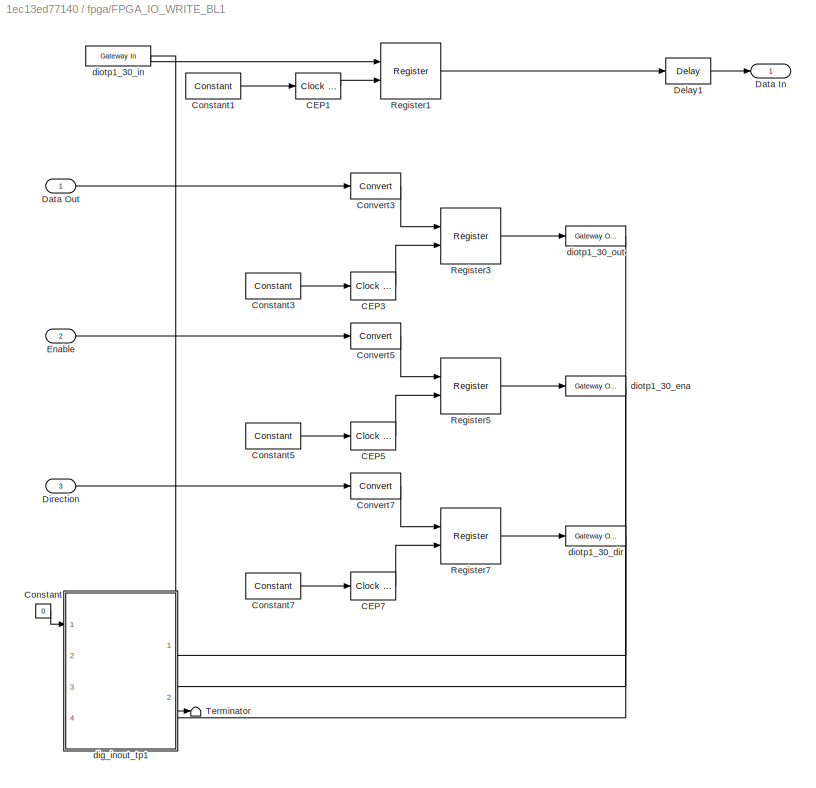
BLOCK [SubSystem] fpga/FPGA_IO_WRITE_BL1
  CloseFcn = try, rti_fpga_blk_closefcn(gcbh); catch,errordlg({lasterr, '','Please check your RTI installation.'},['Error: ' upper(bdroot)], 'replace'); end
  CopyFcn = try, rti_fpga_blk_copyfcn(gcbh); catch,errordlg({lasterr, '','Please check your RTI installation.'},['Error: ' upper(bdroot)], 'replace'); end
  DeleteFcn = try, rti_fpga_blk_deletefcn(gcbh); catch,errordlg({lasterr, '','Please check your RTI installation.'},['Error: ' upper(bdroot)], 'replace'); end
  InitFcn = try, rti_fpga_blk_initfcn(gcbh); catch,errordlg({lasterr, '','Please check your RTI installation.'},['Error: ' upper(bdroot)], 'replace'); end
  LoadFcn = try, rti_fpga_blk_loadfcn(gcbh); catch,errordlg({lasterr, '','Please check your RTI installation.'},['Error: ' upper(bdroot)], 'replace'); end
  MaskHideContents = on
  ModelCloseFcn = try, rti_fpga_blk_modelclosefcn(gcbh); catch,errordlg({lasterr, '','Please check your RTI installation.'},['Error: ' upper(bdroot)], 'replace'); end
  NameChangeFcn = try, rti_fpga_blk_namechangefcn(gcbh); catch,errordlg({lasterr, '','Please check your RTI installation.'},['Error: ' upper(bdroot)], 'replace'); end
  OpenFcn = try, rti_fpga_blk_openfcn(gcbh); catch,errordlg({lasterr, '','Please check your RTI installation.'},['Error: ' upper(bdroot)], 'replace'); end
  ParentCloseFcn = try, rti_fpga_blk_parentclosefcn(gcbh); catch,errordlg({lasterr, '','Please check your RTI installation.'},['Error: ' upper(bdroot)], 'replace'); end
  Ports = [3, 1]
  PreSaveFcn = try, rti_fpga_blk_presavefcn(gcbh); catch,errordlg({lasterr, '','Please check your RTI installation.'},['Error: ' upper(bdroot)], 'replace'); end
  RequestExecContextInheritance = off
  StartFcn = try, rti_fpga_blk_startfcn(gcbh); catch,errordlg({lasterr, '','Please check your RTI installation.'},['Error: ' upper(bdroot)], 'replace'); end
BLOCK [Reference] fpga/FPGA_IO_WRITE_BL1/CEP1  REF=xbsIndex_r4/Clock Enable Probe
  Ports = [1, 1]
  SourceBlock = xbsIndex_r4/Clock Enable Probe
  SourceType = Xilinx Clock Enable Probe Block
BLOCK [Reference] fpga/FPGA_IO_WRITE_BL1/CEP3  REF=xbsIndex_r4/Clock Enable Probe
  Ports = [1, 1]
  SourceBlock = xbsIndex_r4/Clock Enable Probe
  SourceType = Xilinx Clock Enable Probe Block
BLOCK [Reference] fpga/FPGA_IO_WRITE_BL1/CEP5  REF=xbsIndex_r4/Clock Enable Probe
  Ports = [1, 1]
  SourceBlock = xbsIndex_r4/Clock Enable Probe
  SourceType = Xilinx Clock Enable Probe Block
BLOCK [Reference] fpga/FPGA_IO_WRITE_BL1/CEP7  REF=xbsIndex_r4/Clock Enable Probe
  Ports = [1, 1]
  SourceBlock = xbsIndex_r4/Clock Enable Probe
  SourceType = Xilinx Clock Enable Probe Block
BLOCK [Constant] fpga/FPGA_IO_WRITE_BL1/Constant
  Value = 0
BLOCK [Reference] fpga/FPGA_IO_WRITE_BL1/Constant1  REF=xbsIndex_r4/Constant
  Ports = [0, 1]
  SourceBlock = xbsIndex_r4/Constant
  SourceType = Xilinx Constant Block Block
BLOCK [Reference] fpga/FPGA_IO_WRITE_BL1/Constant3  REF=xbsIndex_r4/Constant
  Ports = [0, 1]
  SourceBlock = xbsIndex_r4/Constant
  SourceType = Xilinx Constant Block Block
BLOCK [Reference] fpga/FPGA_IO_WRITE_BL1/Constant5  REF=xbsIndex_r4/Constant
  Ports = [0, 1]
  SourceBlock = xbsIndex_r4/Constant
  SourceType = Xilinx Constant Block Block
BLOCK [Reference] fpga/FPGA_IO_WRITE_BL1/Constant7  REF=xbsIndex_r4/Constant
  Ports = [0, 1]
  SourceBlock = xbsIndex_r4/Constant
  SourceType = Xilinx Constant Block Block
BLOCK [Reference] fpga/FPGA_IO_WRITE_BL1/Convert3  REF=xbsIndex_r4/Convert
  Ports = [1, 1]
  SourceBlock = xbsIndex_r4/Convert
  SourceType = Xilinx Type Converter Block
BLOCK [Reference] fpga/FPGA_IO_WRITE_BL1/Convert5  REF=xbsIndex_r4/Convert
  Ports = [1, 1]
  SourceBlock = xbsIndex_r4/Convert
  SourceType = Xilinx Type Converter Block
BLOCK [Reference] fpga/FPGA_IO_WRITE_BL1/Convert7  REF=xbsIndex_r4/Convert
  Ports = [1, 1]
  SourceBlock = xbsIndex_r4/Convert
  SourceType = Xilinx Type Converter Block
BLOCK [Outport] fpga/FPGA_IO_WRITE_BL1/Data In
BLOCK [Inport] fpga/FPGA_IO_WRITE_BL1/Data Out
BLOCK [Reference] fpga/FPGA_IO_WRITE_BL1/Delay1  REF=xbsIndex_r4/Delay
  Ports = [1, 1]
  SourceBlock = xbsIndex_r4/Delay
  SourceType = Xilinx Delay Block
BLOCK [Inport] fpga/FPGA_IO_WRITE_BL1/Direction
  Port = 3
BLOCK [Inport] fpga/FPGA_IO_WRITE_BL1/Enable
  Port = 2
BLOCK [Reference] fpga/FPGA_IO_WRITE_BL1/Register1  REF=xbsIndex_r4/Register
  Ports = [2, 1]
  SourceBlock = xbsIndex_r4/Register
  SourceType = Xilinx Register Block
BLOCK [Reference] fpga/FPGA_IO_WRITE_BL1/Register3  REF=xbsIndex_r4/Register
  Ports = [2, 1]
  SourceBlock = xbsIndex_r4/Register
  SourceType = Xilinx Register Block
BLOCK [Reference] fpga/FPGA_IO_WRITE_BL1/Register5  REF=xbsIndex_r4/Register
  Ports = [2, 1]
  SourceBlock = xbsIndex_r4/Register
  SourceType = Xilinx Register Block
BLOCK [Reference] fpga/FPGA_IO_WRITE_BL1/Register7  REF=xbsIndex_r4/Register
  Ports = [2, 1]
  SourceBlock = xbsIndex_r4/Register
  SourceType = Xilinx Register Block
BLOCK [Terminator] fpga/FPGA_IO_WRITE_BL1/Terminator
BLOCK [SubSystem] fpga/FPGA_IO_WRITE_BL1/dig_inout_tp1
  Ports = [4, 2]
  RequestExecContextInheritance = off
BLOCK [DataTypeConversion] fpga/FPGA_IO_WRITE_BL1/dig_inout_tp1/Data Type Conversion
  RndMeth = Floor
  SaturateOnIntegerOverflow = off
BLOCK [DataTypeConversion] fpga/FPGA_IO_WRITE_BL1/dig_inout_tp1/Data Type Conversion1
  RndMeth = Floor
  SaturateOnIntegerOverflow = off
BLOCK [Constant] fpga/FPGA_IO_WRITE_BL1/dig_inout_tp1/Disabled Input Value
  Value = 0
BLOCK [Constant] fpga/FPGA_IO_WRITE_BL1/dig_inout_tp1/Disabled Output Value
  Value = 0
BLOCK [Constant] fpga/FPGA_IO_WRITE_BL1/dig_inout_tp1/Invert
  Value = inverted_dio
BLOCK [Constant] fpga/FPGA_IO_WRITE_BL1/dig_inout_tp1/Invert1
  Value = inverted_dio
BLOCK [Logic] fpga/FPGA_IO_WRITE_BL1/dig_inout_tp1/Inverter
  AllPortsSameDT = off
  Operator = NOT
  OutDataTypeStr = boolean
  Ports = [1, 1]
BLOCK [Logic] fpga/FPGA_IO_WRITE_BL1/dig_inout_tp1/Inverter1
  AllPortsSameDT = off
  OutDataTypeStr = boolean
  Ports = [2, 1]
BLOCK [Logic] fpga/FPGA_IO_WRITE_BL1/dig_inout_tp1/Inverter2
  AllPortsSameDT = off
  Operator = NOT
  OutDataTypeStr = boolean
  Ports = [1, 1]
BLOCK [Logic] fpga/FPGA_IO_WRITE_BL1/dig_inout_tp1/Inverter3
  AllPortsSameDT = off
  OutDataTypeStr = boolean
  Ports = [2, 1]
BLOCK [Logic] fpga/FPGA_IO_WRITE_BL1/dig_inout_tp1/Inverter4
  AllPortsSameDT = off
  Operator = NOT
  OutDataTypeStr = boolean
  Ports = [1, 1]
BLOCK [RelationalOperator] fpga/FPGA_IO_WRITE_BL1/dig_inout_tp1/Relational Operator
  InputSameDT = off
  OutDataTypeStr = boolean
  Ports = [2, 1]
BLOCK [Switch] fpga/FPGA_IO_WRITE_BL1/dig_inout_tp1/Switch
  InputSameDT = off
  SaturateOnIntegerOverflow = off
  Threshold = 1
BLOCK [Switch] fpga/FPGA_IO_WRITE_BL1/dig_inout_tp1/Switch1
  InputSameDT = off
  SaturateOnIntegerOverflow = off
  Threshold = 1
BLOCK [Switch] fpga/FPGA_IO_WRITE_BL1/dig_inout_tp1/Switch2
  InputSameDT = off
  SaturateOnIntegerOverflow = off
  Threshold = 1
BLOCK [Switch] fpga/FPGA_IO_WRITE_BL1/dig_inout_tp1/Switch3
  InputSameDT = off
  SaturateOnIntegerOverflow = off
  Threshold = 1
BLOCK [Constant] fpga/FPGA_IO_WRITE_BL1/dig_inout_tp1/Threshold Voltage
  Value = 2
BLOCK [Gain] fpga/FPGA_IO_WRITE_BL1/dig_inout_tp1/Voltage
  Gain = voltage
  ParamDataTypeStr = float('double')
BLOCK [Inport] fpga/FPGA_IO_WRITE_BL1/dig_inout_tp1/data_in_i
BLOCK [Outport] fpga/FPGA_IO_WRITE_BL1/dig_inout_tp1/data_in_o
  VectorParamsAs1DForOutWhenUnconnected = off
BLOCK [Inport] fpga/FPGA_IO_WRITE_BL1/dig_inout_tp1/data_out_i
  Port = 3
BLOCK [Outport] fpga/FPGA_IO_WRITE_BL1/dig_inout_tp1/data_out_o
  Port = 2
  VectorParamsAs1DForOutWhenUnconnected = off
BLOCK [Inport] fpga/FPGA_IO_WRITE_BL1/dig_inout_tp1/direction_i
  Port = 4
BLOCK [Inport] fpga/FPGA_IO_WRITE_BL1/dig_inout_tp1/enable_i
  Port = 2
BLOCK [Reference] fpga/FPGA_IO_WRITE_BL1/diotp1_30_dir  REF=xbsIndex_r4/Gateway Out
  Ports = [1, 1]
  SourceBlock = xbsIndex_r4/Gateway Out
  SourceType = Xilinx Gateway Out Block
BLOCK [Reference] fpga/FPGA_IO_WRITE_BL1/diotp1_30_ena  REF=xbsIndex_r4/Gateway Out
  Ports = [1, 1]
  SourceBlock = xbsIndex_r4/Gateway Out
  SourceType = Xilinx Gateway Out Block
BLOCK [Reference] fpga/FPGA_IO_WRITE_BL1/diotp1_30_in  REF=xbsIndex_r4/Gateway In
  Ports = [1, 1]
  SourceBlock = xbsIndex_r4/Gateway In
  SourceType = Xilinx Gateway In Block
BLOCK [Reference] fpga/FPGA_IO_WRITE_BL1/diotp1_30_out  REF=xbsIndex_r4/Gateway Out
  Ports = [1, 1]
  SourceBlock = xbsIndex_r4/Gateway Out
  SourceType = Xilinx Gateway Out Block
BLOCK [SubSystem] fpga/FPGA_IO_WRITE_BL2
  CloseFcn = try, rti_fpga_blk_closefcn(gcbh); catch,errordlg({lasterr, '','Please check your RTI installation.'},['Error: ' upper(bdroot)], 'replace'); end
  CopyFcn = try, rti_fpga_blk_copyfcn(gcbh); catch,errordlg({lasterr, '','Please check your RTI installation.'},['Error: ' upper(bdroot)], 'replace'); end
  DeleteFcn = try, rti_fpga_blk_deletefcn(gcbh); catch,errordlg({lasterr, '','Please check your RTI installation.'},['Error: ' upper(bdroot)], 'replace'); end
  InitFcn = try, rti_fpga_blk_initfcn(gcbh); catch,errordlg({lasterr, '','Please check your RTI installation.'},['Error: ' upper(bdroot)], 'replace'); end
  LoadFcn = try, rti_fpga_blk_loadfcn(gcbh); catch,errordlg({lasterr, '','Please check your RTI installation.'},['Error: ' upper(bdroot)], 'replace'); end
  MaskHideContents = on
  ModelCloseFcn = try, rti_fpga_blk_modelclosefcn(gcbh); catch,errordlg({lasterr, '','Please check your RTI installation.'},['Error: ' upper(bdroot)], 'replace'); end
  NameChangeFcn = try, rti_fpga_blk_namechangefcn(gcbh); catch,errordlg({lasterr, '','Please check your RTI installation.'},['Error: ' upper(bdroot)], 'replace'); end
  OpenFcn = try, rti_fpga_blk_openfcn(gcbh); catch,errordlg({lasterr, '','Please check your RTI installation.'},['Error: ' upper(bdroot)], 'replace'); end
  ParentCloseFcn = try, rti_fpga_blk_parentclosefcn(gcbh); catch,errordlg({lasterr, '','Please check your RTI installation.'},['Error: ' upper(bdroot)], 'replace'); end
  Ports = [3, 1]
  PreSaveFcn = try, rti_fpga_blk_presavefcn(gcbh); catch,errordlg({lasterr, '','Please check your RTI installation.'},['Error: ' upper(bdroot)], 'replace'); end
  RequestExecContextInheritance = off
  StartFcn = try, rti_fpga_blk_startfcn(gcbh); catch,errordlg({lasterr, '','Please check your RTI installation.'},['Error: ' upper(bdroot)], 'replace'); end
BLOCK [Reference] fpga/FPGA_IO_WRITE_BL2/CEP1  REF=xbsIndex_r4/Clock Enable Probe
  Ports = [1, 1]
  SourceBlock = xbsIndex_r4/Clock Enable Probe
  SourceType = Xilinx Clock Enable Probe Block
BLOCK [Reference] fpga/FPGA_IO_WRITE_BL2/CEP3  REF=xbsIndex_r4/Clock Enable Probe
  Ports = [1, 1]
  SourceBlock = xbsIndex_r4/Clock Enable Probe
  SourceType = Xilinx Clock Enable Probe Block
BLOCK [Reference] fpga/FPGA_IO_WRITE_BL2/CEP5  REF=xbsIndex_r4/Clock Enable Probe
  Ports = [1, 1]
  SourceBlock = xbsIndex_r4/Clock Enable Probe
  SourceType = Xilinx Clock Enable Probe Block
BLOCK [Reference] fpga/FPGA_IO_WRITE_BL2/CEP7  REF=xbsIndex_r4/Clock Enable Probe
  Ports = [1, 1]
  SourceBlock = xbsIndex_r4/Clock Enable Probe
  SourceType = Xilinx Clock Enable Probe Block
BLOCK [Constant] fpga/FPGA_IO_WRITE_BL2/Constant
  Value = 0
BLOCK [Reference] fpga/FPGA_IO_WRITE_BL2/Constant1  REF=xbsIndex_r4/Constant
  Ports = [0, 1]
  SourceBlock = xbsIndex_r4/Constant
  SourceType = Xilinx Constant Block Block
BLOCK [Reference] fpga/FPGA_IO_WRITE_BL2/Constant3  REF=xbsIndex_r4/Constant
  Ports = [0, 1]
  SourceBlock = xbsIndex_r4/Constant
  SourceType = Xilinx Constant Block Block
BLOCK [Reference] fpga/FPGA_IO_WRITE_BL2/Constant5  REF=xbsIndex_r4/Constant
  Ports = [0, 1]
  SourceBlock = xbsIndex_r4/Constant
  SourceType = Xilinx Constant Block Block
BLOCK [Reference] fpga/FPGA_IO_WRITE_BL2/Constant7  REF=xbsIndex_r4/Constant
  Ports = [0, 1]
  SourceBlock = xbsIndex_r4/Constant
  SourceType = Xilinx Constant Block Block
BLOCK [Reference] fpga/FPGA_IO_WRITE_BL2/Convert3  REF=xbsIndex_r4/Convert
  Ports = [1, 1]
  SourceBlock = xbsIndex_r4/Convert
  SourceType = Xilinx Type Converter Block
BLOCK [Reference] fpga/FPGA_IO_WRITE_BL2/Convert5  REF=xbsIndex_r4/Convert
  Ports = [1, 1]
  SourceBlock = xbsIndex_r4/Convert
  SourceType = Xilinx Type Converter Block
BLOCK [Reference] fpga/FPGA_IO_WRITE_BL2/Convert7  REF=xbsIndex_r4/Convert
  Ports = [1, 1]
  SourceBlock = xbsIndex_r4/Convert
  SourceType = Xilinx Type Converter Block
BLOCK [Outport] fpga/FPGA_IO_WRITE_BL2/Data In
BLOCK [Inport] fpga/FPGA_IO_WRITE_BL2/Data Out
BLOCK [Reference] fpga/FPGA_IO_WRITE_BL2/Delay1  REF=xbsIndex_r4/Delay
  Ports = [1, 1]
  SourceBlock = xbsIndex_r4/Delay
  SourceType = Xilinx Delay Block
BLOCK [Inport] fpga/FPGA_IO_WRITE_BL2/Direction
  Port = 3
BLOCK [Inport] fpga/FPGA_IO_WRITE_BL2/Enable
  Port = 2
BLOCK [Reference] fpga/FPGA_IO_WRITE_BL2/Register1  REF=xbsIndex_r4/Register
  Ports = [2, 1]
  SourceBlock = xbsIndex_r4/Register
  SourceType = Xilinx Register Block
BLOCK [Reference] fpga/FPGA_IO_WRITE_BL2/Register3  REF=xbsIndex_r4/Register
  Ports = [2, 1]
  SourceBlock = xbsIndex_r4/Register
  SourceType = Xilinx Register Block
BLOCK [Reference] fpga/FPGA_IO_WRITE_BL2/Register5  REF=xbsIndex_r4/Register
  Ports = [2, 1]
  SourceBlock = xbsIndex_r4/Register
  SourceType = Xilinx Register Block
BLOCK [Reference] fpga/FPGA_IO_WRITE_BL2/Register7  REF=xbsIndex_r4/Register
  Ports = [2, 1]
  SourceBlock = xbsIndex_r4/Register
  SourceType = Xilinx Register Block
BLOCK [Terminator] fpga/FPGA_IO_WRITE_BL2/Terminator
BLOCK [SubSystem] fpga/FPGA_IO_WRITE_BL2/dig_inout_tp1
  Ports = [4, 2]
  RequestExecContextInheritance = off
BLOCK [DataTypeConversion] fpga/FPGA_IO_WRITE_BL2/dig_inout_tp1/Data Type Conversion
  RndMeth = Floor
  SaturateOnIntegerOverflow = off
BLOCK [DataTypeConversion] fpga/FPGA_IO_WRITE_BL2/dig_inout_tp1/Data Type Conversion1
  RndMeth = Floor
  SaturateOnIntegerOverflow = off
BLOCK [Constant] fpga/FPGA_IO_WRITE_BL2/dig_inout_tp1/Disabled Input Value
  Value = 0
BLOCK [Constant] fpga/FPGA_IO_WRITE_BL2/dig_inout_tp1/Disabled Output Value
  Value = 0
BLOCK [Constant] fpga/FPGA_IO_WRITE_BL2/dig_inout_tp1/Invert
  Value = inverted_dio
BLOCK [Constant] fpga/FPGA_IO_WRITE_BL2/dig_inout_tp1/Invert1
  Value = inverted_dio
BLOCK [Logic] fpga/FPGA_IO_WRITE_BL2/dig_inout_tp1/Inverter
  AllPortsSameDT = off
  Operator = NOT
  OutDataTypeStr = boolean
  Ports = [1, 1]
BLOCK [Logic] fpga/FPGA_IO_WRITE_BL2/dig_inout_tp1/Inverter1
  AllPortsSameDT = off
  OutDataTypeStr = boolean
  Ports = [2, 1]
BLOCK [Logic] fpga/FPGA_IO_WRITE_BL2/dig_inout_tp1/Inverter2
  AllPortsSameDT = off
  Operator = NOT
  OutDataTypeStr = boolean
  Ports = [1, 1]
BLOCK [Logic] fpga/FPGA_IO_WRITE_BL2/dig_inout_tp1/Inverter3
  AllPortsSameDT = off
  OutDataTypeStr = boolean
  Ports = [2, 1]
BLOCK [Logic] fpga/FPGA_IO_WRITE_BL2/dig_inout_tp1/Inverter4
  AllPortsSameDT = off
  Operator = NOT
  OutDataTypeStr = boolean
  Ports = [1, 1]
BLOCK [RelationalOperator] fpga/FPGA_IO_WRITE_BL2/dig_inout_tp1/Relational Operator
  InputSameDT = off
  OutDataTypeStr = boolean
  Ports = [2, 1]
BLOCK [Switch] fpga/FPGA_IO_WRITE_BL2/dig_inout_tp1/Switch
  InputSameDT = off
  SaturateOnIntegerOverflow = off
  Threshold = 1
BLOCK [Switch] fpga/FPGA_IO_WRITE_BL2/dig_inout_tp1/Switch1
  InputSameDT = off
  SaturateOnIntegerOverflow = off
  Threshold = 1
BLOCK [Switch] fpga/FPGA_IO_WRITE_BL2/dig_inout_tp1/Switch2
  InputSameDT = off
  SaturateOnIntegerOverflow = off
  Threshold = 1
BLOCK [Switch] fpga/FPGA_IO_WRITE_BL2/dig_inout_tp1/Switch3
  InputSameDT = off
  SaturateOnIntegerOverflow = off
  Threshold = 1
BLOCK [Constant] fpga/FPGA_IO_WRITE_BL2/dig_inout_tp1/Threshold Voltage
  Value = 2
BLOCK [Gain] fpga/FPGA_IO_WRITE_BL2/dig_inout_tp1/Voltage
  Gain = voltage
  ParamDataTypeStr = float('double')
BLOCK [Inport] fpga/FPGA_IO_WRITE_BL2/dig_inout_tp1/data_in_i
BLOCK [Outport] fpga/FPGA_IO_WRITE_BL2/dig_inout_tp1/data_in_o
  VectorParamsAs1DForOutWhenUnconnected = off
BLOCK [Inport] fpga/FPGA_IO_WRITE_BL2/dig_inout_tp1/data_out_i
  Port = 3
BLOCK [Outport] fpga/FPGA_IO_WRITE_BL2/dig_inout_tp1/data_out_o
  Port = 2
  VectorParamsAs1DForOutWhenUnconnected = off
BLOCK [Inport] fpga/FPGA_IO_WRITE_BL2/dig_inout_tp1/direction_i
  Port = 4
BLOCK [Inport] fpga/FPGA_IO_WRITE_BL2/dig_inout_tp1/enable_i
  Port = 2
BLOCK [Reference] fpga/FPGA_IO_WRITE_BL2/diotp1_31_dir  REF=xbsIndex_r4/Gateway Out
  Ports = [1, 1]
  SourceBlock = xbsIndex_r4/Gateway Out
  SourceType = Xilinx Gateway Out Block
BLOCK [Reference] fpga/FPGA_IO_WRITE_BL2/diotp1_31_ena  REF=xbsIndex_r4/Gateway Out
  Ports = [1, 1]
  SourceBlock = xbsIndex_r4/Gateway Out
  SourceType = Xilinx Gateway Out Block
BLOCK [Reference] fpga/FPGA_IO_WRITE_BL2/diotp1_31_in  REF=xbsIndex_r4/Gateway In
  Ports = [1, 1]
  SourceBlock = xbsIndex_r4/Gateway In
  SourceType = Xilinx Gateway In Block
BLOCK [Reference] fpga/FPGA_IO_WRITE_BL2/diotp1_31_out  REF=xbsIndex_r4/Gateway Out
  Ports = [1, 1]
  SourceBlock = xbsIndex_r4/Gateway Out
  SourceType = Xilinx Gateway Out Block
BLOCK [SubSystem] fpga/FPGA_IO_WRITE_BL3
  CloseFcn = try, rti_fpga_blk_closefcn(gcbh); catch,errordlg({lasterr, '','Please check your RTI installation.'},['Error: ' upper(bdroot)], 'replace'); end
  CopyFcn = try, rti_fpga_blk_copyfcn(gcbh); catch,errordlg({lasterr, '','Please check your RTI installation.'},['Error: ' upper(bdroot)], 'replace'); end
  DeleteFcn = try, rti_fpga_blk_deletefcn(gcbh); catch,errordlg({lasterr, '','Please check your RTI installation.'},['Error: ' upper(bdroot)], 'replace'); end
  InitFcn = try, rti_fpga_blk_initfcn(gcbh); catch,errordlg({lasterr, '','Please check your RTI installation.'},['Error: ' upper(bdroot)], 'replace'); end
  LoadFcn = try, rti_fpga_blk_loadfcn(gcbh); catch,errordlg({lasterr, '','Please check your RTI installation.'},['Error: ' upper(bdroot)], 'replace'); end
  MaskHideContents = on
  ModelCloseFcn = try, rti_fpga_blk_modelclosefcn(gcbh); catch,errordlg({lasterr, '','Please check your RTI installation.'},['Error: ' upper(bdroot)], 'replace'); end
  NameChangeFcn = try, rti_fpga_blk_namechangefcn(gcbh); catch,errordlg({lasterr, '','Please check your RTI installation.'},['Error: ' upper(bdroot)], 'replace'); end
  OpenFcn = try, rti_fpga_blk_openfcn(gcbh); catch,errordlg({lasterr, '','Please check your RTI installation.'},['Error: ' upper(bdroot)], 'replace'); end
  ParentCloseFcn = try, rti_fpga_blk_parentclosefcn(gcbh); catch,errordlg({lasterr, '','Please check your RTI installation.'},['Error: ' upper(bdroot)], 'replace'); end
  Ports = [3, 1]
  PreSaveFcn = try, rti_fpga_blk_presavefcn(gcbh); catch,errordlg({lasterr, '','Please check your RTI installation.'},['Error: ' upper(bdroot)], 'replace'); end
  RequestExecContextInheritance = off
  StartFcn = try, rti_fpga_blk_startfcn(gcbh); catch,errordlg({lasterr, '','Please check your RTI installation.'},['Error: ' upper(bdroot)], 'replace'); end
BLOCK [Reference] fpga/FPGA_IO_WRITE_BL3/CEP1  REF=xbsIndex_r4/Clock Enable Probe
  Ports = [1, 1]
  SourceBlock = xbsIndex_r4/Clock Enable Probe
  SourceType = Xilinx Clock Enable Probe Block
BLOCK [Reference] fpga/FPGA_IO_WRITE_BL3/CEP3  REF=xbsIndex_r4/Clock Enable Probe
  Ports = [1, 1]
  SourceBlock = xbsIndex_r4/Clock Enable Probe
  SourceType = Xilinx Clock Enable Probe Block
BLOCK [Reference] fpga/FPGA_IO_WRITE_BL3/CEP5  REF=xbsIndex_r4/Clock Enable Probe
  Ports = [1, 1]
  SourceBlock = xbsIndex_r4/Clock Enable Probe
  SourceType = Xilinx Clock Enable Probe Block
BLOCK [Reference] fpga/FPGA_IO_WRITE_BL3/CEP7  REF=xbsIndex_r4/Clock Enable Probe
  Ports = [1, 1]
  SourceBlock = xbsIndex_r4/Clock Enable Probe
  SourceType = Xilinx Clock Enable Probe Block
BLOCK [Constant] fpga/FPGA_IO_WRITE_BL3/Constant
  Value = 0
BLOCK [Reference] fpga/FPGA_IO_WRITE_BL3/Constant1  REF=xbsIndex_r4/Constant
  Ports = [0, 1]
  SourceBlock = xbsIndex_r4/Constant
  SourceType = Xilinx Constant Block Block
BLOCK [Reference] fpga/FPGA_IO_WRITE_BL3/Constant3  REF=xbsIndex_r4/Constant
  Ports = [0, 1]
  SourceBlock = xbsIndex_r4/Constant
  SourceType = Xilinx Constant Block Block
BLOCK [Reference] fpga/FPGA_IO_WRITE_BL3/Constant5  REF=xbsIndex_r4/Constant
  Ports = [0, 1]
  SourceBlock = xbsIndex_r4/Constant
  SourceType = Xilinx Constant Block Block
BLOCK [Reference] fpga/FPGA_IO_WRITE_BL3/Constant7  REF=xbsIndex_r4/Constant
  Ports = [0, 1]
  SourceBlock = xbsIndex_r4/Constant
  SourceType = Xilinx Constant Block Block
BLOCK [Reference] fpga/FPGA_IO_WRITE_BL3/Convert3  REF=xbsIndex_r4/Convert
  Ports = [1, 1]
  SourceBlock = xbsIndex_r4/Convert
  SourceType = Xilinx Type Converter Block
BLOCK [Reference] fpga/FPGA_IO_WRITE_BL3/Convert5  REF=xbsIndex_r4/Convert
  Ports = [1, 1]
  SourceBlock = xbsIndex_r4/Convert
  SourceType = Xilinx Type Converter Block
BLOCK [Reference] fpga/FPGA_IO_WRITE_BL3/Convert7  REF=xbsIndex_r4/Convert
  Ports = [1, 1]
  SourceBlock = xbsIndex_r4/Convert
  SourceType = Xilinx Type Converter Block
BLOCK [Outport] fpga/FPGA_IO_WRITE_BL3/Data In
BLOCK [Inport] fpga/FPGA_IO_WRITE_BL3/Data Out
BLOCK [Reference] fpga/FPGA_IO_WRITE_BL3/Delay1  REF=xbsIndex_r4/Delay
  Ports = [1, 1]
  SourceBlock = xbsIndex_r4/Delay
  SourceType = Xilinx Delay Block
BLOCK [Inport] fpga/FPGA_IO_WRITE_BL3/Direction
  Port = 3
BLOCK [Inport] fpga/FPGA_IO_WRITE_BL3/Enable
  Port = 2
BLOCK [Reference] fpga/FPGA_IO_WRITE_BL3/Register1  REF=xbsIndex_r4/Register
  Ports = [2, 1]
  SourceBlock = xbsIndex_r4/Register
  SourceType = Xilinx Register Block
BLOCK [Reference] fpga/FPGA_IO_WRITE_BL3/Register3  REF=xbsIndex_r4/Register
  Ports = [2, 1]
  SourceBlock = xbsIndex_r4/Register
  SourceType = Xilinx Register Block
BLOCK [Reference] fpga/FPGA_IO_WRITE_BL3/Register5  REF=xbsIndex_r4/Register
  Ports = [2, 1]
  SourceBlock = xbsIndex_r4/Register
  SourceType = Xilinx Register Block
BLOCK [Reference] fpga/FPGA_IO_WRITE_BL3/Register7  REF=xbsIndex_r4/Register
  Ports = [2, 1]
  SourceBlock = xbsIndex_r4/Register
  SourceType = Xilinx Register Block
BLOCK [Terminator] fpga/FPGA_IO_WRITE_BL3/Terminator
BLOCK [SubSystem] fpga/FPGA_IO_WRITE_BL3/dig_inout_tp1
  Ports = [4, 2]
  RequestExecContextInheritance = off
BLOCK [DataTypeConversion] fpga/FPGA_IO_WRITE_BL3/dig_inout_tp1/Data Type Conversion
  RndMeth = Floor
  SaturateOnIntegerOverflow = off
BLOCK [DataTypeConversion] fpga/FPGA_IO_WRITE_BL3/dig_inout_tp1/Data Type Conversion1
  RndMeth = Floor
  SaturateOnIntegerOverflow = off
BLOCK [Constant] fpga/FPGA_IO_WRITE_BL3/dig_inout_tp1/Disabled Input Value
  Value = 0
BLOCK [Constant] fpga/FPGA_IO_WRITE_BL3/dig_inout_tp1/Disabled Output Value
  Value = 0
BLOCK [Constant] fpga/FPGA_IO_WRITE_BL3/dig_inout_tp1/Invert
  Value = inverted_dio
BLOCK [Constant] fpga/FPGA_IO_WRITE_BL3/dig_inout_tp1/Invert1
  Value = inverted_dio
BLOCK [Logic] fpga/FPGA_IO_WRITE_BL3/dig_inout_tp1/Inverter
  AllPortsSameDT = off
  Operator = NOT
  OutDataTypeStr = boolean
  Ports = [1, 1]
BLOCK [Logic] fpga/FPGA_IO_WRITE_BL3/dig_inout_tp1/Inverter1
  AllPortsSameDT = off
  OutDataTypeStr = boolean
  Ports = [2, 1]
BLOCK [Logic] fpga/FPGA_IO_WRITE_BL3/dig_inout_tp1/Inverter2
  AllPortsSameDT = off
  Operator = NOT
  OutDataTypeStr = boolean
  Ports = [1, 1]
BLOCK [Logic] fpga/FPGA_IO_WRITE_BL3/dig_inout_tp1/Inverter3
  AllPortsSameDT = off
  OutDataTypeStr = boolean
  Ports = [2, 1]
BLOCK [Logic] fpga/FPGA_IO_WRITE_BL3/dig_inout_tp1/Inverter4
  AllPortsSameDT = off
  Operator = NOT
  OutDataTypeStr = boolean
  Ports = [1, 1]
BLOCK [RelationalOperator] fpga/FPGA_IO_WRITE_BL3/dig_inout_tp1/Relational Operator
  InputSameDT = off
  OutDataTypeStr = boolean
  Ports = [2, 1]
BLOCK [Switch] fpga/FPGA_IO_WRITE_BL3/dig_inout_tp1/Switch
  InputSameDT = off
  SaturateOnIntegerOverflow = off
  Threshold = 1
BLOCK [Switch] fpga/FPGA_IO_WRITE_BL3/dig_inout_tp1/Switch1
  InputSameDT = off
  SaturateOnIntegerOverflow = off
  Threshold = 1
BLOCK [Switch] fpga/FPGA_IO_WRITE_BL3/dig_inout_tp1/Switch2
  InputSameDT = off
  SaturateOnIntegerOverflow = off
  Threshold = 1
BLOCK [Switch] fpga/FPGA_IO_WRITE_BL3/dig_inout_tp1/Switch3
  InputSameDT = off
  SaturateOnIntegerOverflow = off
  Threshold = 1
BLOCK [Constant] fpga/FPGA_IO_WRITE_BL3/dig_inout_tp1/Threshold Voltage
  Value = 2
BLOCK [Gain] fpga/FPGA_IO_WRITE_BL3/dig_inout_tp1/Voltage
  Gain = voltage
  ParamDataTypeStr = float('double')
BLOCK [Inport] fpga/FPGA_IO_WRITE_BL3/dig_inout_tp1/data_in_i
BLOCK [Outport] fpga/FPGA_IO_WRITE_BL3/dig_inout_tp1/data_in_o
  VectorParamsAs1DForOutWhenUnconnected = off
BLOCK [Inport] fpga/FPGA_IO_WRITE_BL3/dig_inout_tp1/data_out_i
  Port = 3
BLOCK [Outport] fpga/FPGA_IO_WRITE_BL3/dig_inout_tp1/data_out_o
  Port = 2
  VectorParamsAs1DForOutWhenUnconnected = off
BLOCK [Inport] fpga/FPGA_IO_WRITE_BL3/dig_inout_tp1/direction_i
  Port = 4
BLOCK [Inport] fpga/FPGA_IO_WRITE_BL3/dig_inout_tp1/enable_i
  Port = 2
BLOCK [Reference] fpga/FPGA_IO_WRITE_BL3/diotp1_28_dir  REF=xbsIndex_r4/Gateway Out
  Ports = [1, 1]
  SourceBlock = xbsIndex_r4/Gateway Out
  SourceType = Xilinx Gateway Out Block
BLOCK [Reference] fpga/FPGA_IO_WRITE_BL3/diotp1_28_ena  REF=xbsIndex_r4/Gateway Out
  Ports = [1, 1]
  SourceBlock = xbsIndex_r4/Gateway Out
  SourceType = Xilinx Gateway Out Block
BLOCK [Reference] fpga/FPGA_IO_WRITE_BL3/diotp1_28_in  REF=xbsIndex_r4/Gateway In
  Ports = [1, 1]
  SourceBlock = xbsIndex_r4/Gateway In
  SourceType = Xilinx Gateway In Block
BLOCK [Reference] fpga/FPGA_IO_WRITE_BL3/diotp1_28_out  REF=xbsIndex_r4/Gateway Out
  Ports = [1, 1]
  SourceBlock = xbsIndex_r4/Gateway Out
  SourceType = Xilinx Gateway Out Block
BLOCK [SubSystem] fpga/FPGA_IO_WRITE_BL4
  CloseFcn = try, rti_fpga_blk_closefcn(gcbh); catch,errordlg({lasterr, '','Please check your RTI installation.'},['Error: ' upper(bdroot)], 'replace'); end
  CopyFcn = try, rti_fpga_blk_copyfcn(gcbh); catch,errordlg({lasterr, '','Please check your RTI installation.'},['Error: ' upper(bdroot)], 'replace'); end
  DeleteFcn = try, rti_fpga_blk_deletefcn(gcbh); catch,errordlg({lasterr, '','Please check your RTI installation.'},['Error: ' upper(bdroot)], 'replace'); end
  InitFcn = try, rti_fpga_blk_initfcn(gcbh); catch,errordlg({lasterr, '','Please check your RTI installation.'},['Error: ' upper(bdroot)], 'replace'); end
  LoadFcn = try, rti_fpga_blk_loadfcn(gcbh); catch,errordlg({lasterr, '','Please check your RTI installation.'},['Error: ' upper(bdroot)], 'replace'); end
  MaskHideContents = on
  ModelCloseFcn = try, rti_fpga_blk_modelclosefcn(gcbh); catch,errordlg({lasterr, '','Please check your RTI installation.'},['Error: ' upper(bdroot)], 'replace'); end
  NameChangeFcn = try, rti_fpga_blk_namechangefcn(gcbh); catch,errordlg({lasterr, '','Please check your RTI installation.'},['Error: ' upper(bdroot)], 'replace'); end
  OpenFcn = try, rti_fpga_blk_openfcn(gcbh); catch,errordlg({lasterr, '','Please check your RTI installation.'},['Error: ' upper(bdroot)], 'replace'); end
  ParentCloseFcn = try, rti_fpga_blk_parentclosefcn(gcbh); catch,errordlg({lasterr, '','Please check your RTI installation.'},['Error: ' upper(bdroot)], 'replace'); end
  Ports = [3, 1]
  PreSaveFcn = try, rti_fpga_blk_presavefcn(gcbh); catch,errordlg({lasterr, '','Please check your RTI installation.'},['Error: ' upper(bdroot)], 'replace'); end
  RequestExecContextInheritance = off
  StartFcn = try, rti_fpga_blk_startfcn(gcbh); catch,errordlg({lasterr, '','Please check your RTI installation.'},['Error: ' upper(bdroot)], 'replace'); end
BLOCK [Reference] fpga/FPGA_IO_WRITE_BL4/CEP1  REF=xbsIndex_r4/Clock Enable Probe
  Ports = [1, 1]
  SourceBlock = xbsIndex_r4/Clock Enable Probe
  SourceType = Xilinx Clock Enable Probe Block
BLOCK [Reference] fpga/FPGA_IO_WRITE_BL4/CEP3  REF=xbsIndex_r4/Clock Enable Probe
  Ports = [1, 1]
  SourceBlock = xbsIndex_r4/Clock Enable Probe
  SourceType = Xilinx Clock Enable Probe Block
BLOCK [Reference] fpga/FPGA_IO_WRITE_BL4/CEP5  REF=xbsIndex_r4/Clock Enable Probe
  Ports = [1, 1]
  SourceBlock = xbsIndex_r4/Clock Enable Probe
  SourceType = Xilinx Clock Enable Probe Block
BLOCK [Reference] fpga/FPGA_IO_WRITE_BL4/CEP7  REF=xbsIndex_r4/Clock Enable Probe
  Ports = [1, 1]
  SourceBlock = xbsIndex_r4/Clock Enable Probe
  SourceType = Xilinx Clock Enable Probe Block
BLOCK [Constant] fpga/FPGA_IO_WRITE_BL4/Constant
  Value = 0
BLOCK [Reference] fpga/FPGA_IO_WRITE_BL4/Constant1  REF=xbsIndex_r4/Constant
  Ports = [0, 1]
  SourceBlock = xbsIndex_r4/Constant
  SourceType = Xilinx Constant Block Block
BLOCK [Reference] fpga/FPGA_IO_WRITE_BL4/Constant3  REF=xbsIndex_r4/Constant
  Ports = [0, 1]
  SourceBlock = xbsIndex_r4/Constant
  SourceType = Xilinx Constant Block Block
BLOCK [Reference] fpga/FPGA_IO_WRITE_BL4/Constant5  REF=xbsIndex_r4/Constant
  Ports = [0, 1]
  SourceBlock = xbsIndex_r4/Constant
  SourceType = Xilinx Constant Block Block
BLOCK [Reference] fpga/FPGA_IO_WRITE_BL4/Constant7  REF=xbsIndex_r4/Constant
  Ports = [0, 1]
  SourceBlock = xbsIndex_r4/Constant
  SourceType = Xilinx Constant Block Block
BLOCK [Reference] fpga/FPGA_IO_WRITE_BL4/Convert3  REF=xbsIndex_r4/Convert
  Ports = [1, 1]
  SourceBlock = xbsIndex_r4/Convert
  SourceType = Xilinx Type Converter Block
BLOCK [Reference] fpga/FPGA_IO_WRITE_BL4/Convert5  REF=xbsIndex_r4/Convert
  Ports = [1, 1]
  SourceBlock = xbsIndex_r4/Convert
  SourceType = Xilinx Type Converter Block
BLOCK [Reference] fpga/FPGA_IO_WRITE_BL4/Convert7  REF=xbsIndex_r4/Convert
  Ports = [1, 1]
  SourceBlock = xbsIndex_r4/Convert
  SourceType = Xilinx Type Converter Block
BLOCK [Outport] fpga/FPGA_IO_WRITE_BL4/Data In
BLOCK [Inport] fpga/FPGA_IO_WRITE_BL4/Data Out
BLOCK [Reference] fpga/FPGA_IO_WRITE_BL4/Delay1  REF=xbsIndex_r4/Delay
  Ports = [1, 1]
  SourceBlock = xbsIndex_r4/Delay
  SourceType = Xilinx Delay Block
BLOCK [Inport] fpga/FPGA_IO_WRITE_BL4/Direction
  Port = 3
BLOCK [Inport] fpga/FPGA_IO_WRITE_BL4/Enable
  Port = 2
BLOCK [Reference] fpga/FPGA_IO_WRITE_BL4/Register1  REF=xbsIndex_r4/Register
  Ports = [2, 1]
  SourceBlock = xbsIndex_r4/Register
  SourceType = Xilinx Register Block
BLOCK [Reference] fpga/FPGA_IO_WRITE_BL4/Register3  REF=xbsIndex_r4/Register
  Ports = [2, 1]
  SourceBlock = xbsIndex_r4/Register
  SourceType = Xilinx Register Block
BLOCK [Reference] fpga/FPGA_IO_WRITE_BL4/Register5  REF=xbsIndex_r4/Register
  Ports = [2, 1]
  SourceBlock = xbsIndex_r4/Register
  SourceType = Xilinx Register Block
BLOCK [Reference] fpga/FPGA_IO_WRITE_BL4/Register7  REF=xbsIndex_r4/Register
  Ports = [2, 1]
  SourceBlock = xbsIndex_r4/Register
  SourceType = Xilinx Register Block
BLOCK [Terminator] fpga/FPGA_IO_WRITE_BL4/Terminator
BLOCK [SubSystem] fpga/FPGA_IO_WRITE_BL4/dig_inout_tp1
  Ports = [4, 2]
  RequestExecContextInheritance = off
BLOCK [DataTypeConversion] fpga/FPGA_IO_WRITE_BL4/dig_inout_tp1/Data Type Conversion
  RndMeth = Floor
  SaturateOnIntegerOverflow = off
BLOCK [DataTypeConversion] fpga/FPGA_IO_WRITE_BL4/dig_inout_tp1/Data Type Conversion1
  RndMeth = Floor
  SaturateOnIntegerOverflow = off
BLOCK [Constant] fpga/FPGA_IO_WRITE_BL4/dig_inout_tp1/Disabled Input Value
  Value = 0
BLOCK [Constant] fpga/FPGA_IO_WRITE_BL4/dig_inout_tp1/Disabled Output Value
  Value = 0
BLOCK [Constant] fpga/FPGA_IO_WRITE_BL4/dig_inout_tp1/Invert
  Value = inverted_dio
BLOCK [Constant] fpga/FPGA_IO_WRITE_BL4/dig_inout_tp1/Invert1
  Value = inverted_dio
BLOCK [Logic] fpga/FPGA_IO_WRITE_BL4/dig_inout_tp1/Inverter
  AllPortsSameDT = off
  Operator = NOT
  OutDataTypeStr = boolean
  Ports = [1, 1]
BLOCK [Logic] fpga/FPGA_IO_WRITE_BL4/dig_inout_tp1/Inverter1
  AllPortsSameDT = off
  OutDataTypeStr = boolean
  Ports = [2, 1]
BLOCK [Logic] fpga/FPGA_IO_WRITE_BL4/dig_inout_tp1/Inverter2
  AllPortsSameDT = off
  Operator = NOT
  OutDataTypeStr = boolean
  Ports = [1, 1]
BLOCK [Logic] fpga/FPGA_IO_WRITE_BL4/dig_inout_tp1/Inverter3
  AllPortsSameDT = off
  OutDataTypeStr = boolean
  Ports = [2, 1]
BLOCK [Logic] fpga/FPGA_IO_WRITE_BL4/dig_inout_tp1/Inverter4
  AllPortsSameDT = off
  Operator = NOT
  OutDataTypeStr = boolean
  Ports = [1, 1]
BLOCK [RelationalOperator] fpga/FPGA_IO_WRITE_BL4/dig_inout_tp1/Relational Operator
  InputSameDT = off
  OutDataTypeStr = boolean
  Ports = [2, 1]
BLOCK [Switch] fpga/FPGA_IO_WRITE_BL4/dig_inout_tp1/Switch
  InputSameDT = off
  SaturateOnIntegerOverflow = off
  Threshold = 1
BLOCK [Switch] fpga/FPGA_IO_WRITE_BL4/dig_inout_tp1/Switch1
  InputSameDT = off
  SaturateOnIntegerOverflow = off
  Threshold = 1
BLOCK [Switch] fpga/FPGA_IO_WRITE_BL4/dig_inout_tp1/Switch2
  InputSameDT = off
  SaturateOnIntegerOverflow = off
  Threshold = 1
BLOCK [Switch] fpga/FPGA_IO_WRITE_BL4/dig_inout_tp1/Switch3
  InputSameDT = off
  SaturateOnIntegerOverflow = off
  Threshold = 1
BLOCK [Constant] fpga/FPGA_IO_WRITE_BL4/dig_inout_tp1/Threshold Voltage
  Value = 2
BLOCK [Gain] fpga/FPGA_IO_WRITE_BL4/dig_inout_tp1/Voltage
  Gain = voltage
  ParamDataTypeStr = float('double')
BLOCK [Inport] fpga/FPGA_IO_WRITE_BL4/dig_inout_tp1/data_in_i
BLOCK [Outport] fpga/FPGA_IO_WRITE_BL4/dig_inout_tp1/data_in_o
  VectorParamsAs1DForOutWhenUnconnected = off
BLOCK [Inport] fpga/FPGA_IO_WRITE_BL4/dig_inout_tp1/data_out_i
  Port = 3
BLOCK [Outport] fpga/FPGA_IO_WRITE_BL4/dig_inout_tp1/data_out_o
  Port = 2
  VectorParamsAs1DForOutWhenUnconnected = off
BLOCK [Inport] fpga/FPGA_IO_WRITE_BL4/dig_inout_tp1/direction_i
  Port = 4
BLOCK [Inport] fpga/FPGA_IO_WRITE_BL4/dig_inout_tp1/enable_i
  Port = 2
BLOCK [Reference] fpga/FPGA_IO_WRITE_BL4/diotp1_29_dir  REF=xbsIndex_r4/Gateway Out
  Ports = [1, 1]
  SourceBlock = xbsIndex_r4/Gateway Out
  SourceType = Xilinx Gateway Out Block
BLOCK [Reference] fpga/FPGA_IO_WRITE_BL4/diotp1_29_ena  REF=xbsIndex_r4/Gateway Out
  Ports = [1, 1]
  SourceBlock = xbsIndex_r4/Gateway Out
  SourceType = Xilinx Gateway Out Block
BLOCK [Reference] fpga/FPGA_IO_WRITE_BL4/diotp1_29_in  REF=xbsIndex_r4/Gateway In
  Ports = [1, 1]
  SourceBlock = xbsIndex_r4/Gateway In
  SourceType = Xilinx Gateway In Block
BLOCK [Reference] fpga/FPGA_IO_WRITE_BL4/diotp1_29_out  REF=xbsIndex_r4/Gateway Out
  Ports = [1, 1]
  SourceBlock = xbsIndex_r4/Gateway Out
  SourceType = Xilinx Gateway Out Block
BLOCK [SubSystem] fpga/FPGA_IO_WRITE_BL5
  CloseFcn = try, rti_fpga_blk_closefcn(gcbh); catch,errordlg({lasterr, '','Please check your RTI installation.'},['Error: ' upper(bdroot)], 'replace'); end
  CopyFcn = try, rti_fpga_blk_copyfcn(gcbh); catch,errordlg({lasterr, '','Please check your RTI installation.'},['Error: ' upper(bdroot)], 'replace'); end
  DeleteFcn = try, rti_fpga_blk_deletefcn(gcbh); catch,errordlg({lasterr, '','Please check your RTI installation.'},['Error: ' upper(bdroot)], 'replace'); end
  InitFcn = try, rti_fpga_blk_initfcn(gcbh); catch,errordlg({lasterr, '','Please check your RTI installation.'},['Error: ' upper(bdroot)], 'replace'); end
  LoadFcn = try, rti_fpga_blk_loadfcn(gcbh); catch,errordlg({lasterr, '','Please check your RTI installation.'},['Error: ' upper(bdroot)], 'replace'); end
  MaskHideContents = on
  ModelCloseFcn = try, rti_fpga_blk_modelclosefcn(gcbh); catch,errordlg({lasterr, '','Please check your RTI installation.'},['Error: ' upper(bdroot)], 'replace'); end
  NameChangeFcn = try, rti_fpga_blk_namechangefcn(gcbh); catch,errordlg({lasterr, '','Please check your RTI installation.'},['Error: ' upper(bdroot)], 'replace'); end
  OpenFcn = try, rti_fpga_blk_openfcn(gcbh); catch,errordlg({lasterr, '','Please check your RTI installation.'},['Error: ' upper(bdroot)], 'replace'); end
  ParentCloseFcn = try, rti_fpga_blk_parentclosefcn(gcbh); catch,errordlg({lasterr, '','Please check your RTI installation.'},['Error: ' upper(bdroot)], 'replace'); end
  Ports = [3, 1]
  PreSaveFcn = try, rti_fpga_blk_presavefcn(gcbh); catch,errordlg({lasterr, '','Please check your RTI installation.'},['Error: ' upper(bdroot)], 'replace'); end
  RequestExecContextInheritance = off
  StartFcn = try, rti_fpga_blk_startfcn(gcbh); catch,errordlg({lasterr, '','Please check your RTI installation.'},['Error: ' upper(bdroot)], 'replace'); end
BLOCK [Reference] fpga/FPGA_IO_WRITE_BL5/CEP1  REF=xbsIndex_r4/Clock Enable Probe
  Ports = [1, 1]
  SourceBlock = xbsIndex_r4/Clock Enable Probe
  SourceType = Xilinx Clock Enable Probe Block
BLOCK [Reference] fpga/FPGA_IO_WRITE_BL5/CEP3  REF=xbsIndex_r4/Clock Enable Probe
  Ports = [1, 1]
  SourceBlock = xbsIndex_r4/Clock Enable Probe
  SourceType = Xilinx Clock Enable Probe Block
BLOCK [Reference] fpga/FPGA_IO_WRITE_BL5/CEP5  REF=xbsIndex_r4/Clock Enable Probe
  Ports = [1, 1]
  SourceBlock = xbsIndex_r4/Clock Enable Probe
  SourceType = Xilinx Clock Enable Probe Block
BLOCK [Reference] fpga/FPGA_IO_WRITE_BL5/CEP7  REF=xbsIndex_r4/Clock Enable Probe
  Ports = [1, 1]
  SourceBlock = xbsIndex_r4/Clock Enable Probe
  SourceType = Xilinx Clock Enable Probe Block
BLOCK [Constant] fpga/FPGA_IO_WRITE_BL5/Constant
  Value = 0
BLOCK [Reference] fpga/FPGA_IO_WRITE_BL5/Constant1  REF=xbsIndex_r4/Constant
  Ports = [0, 1]
  SourceBlock = xbsIndex_r4/Constant
  SourceType = Xilinx Constant Block Block
BLOCK [Reference] fpga/FPGA_IO_WRITE_BL5/Constant3  REF=xbsIndex_r4/Constant
  Ports = [0, 1]
  SourceBlock = xbsIndex_r4/Constant
  SourceType = Xilinx Constant Block Block
BLOCK [Reference] fpga/FPGA_IO_WRITE_BL5/Constant5  REF=xbsIndex_r4/Constant
  Ports = [0, 1]
  SourceBlock = xbsIndex_r4/Constant
  SourceType = Xilinx Constant Block Block
BLOCK [Reference] fpga/FPGA_IO_WRITE_BL5/Constant7  REF=xbsIndex_r4/Constant
  Ports = [0, 1]
  SourceBlock = xbsIndex_r4/Constant
  SourceType = Xilinx Constant Block Block
BLOCK [Reference] fpga/FPGA_IO_WRITE_BL5/Convert3  REF=xbsIndex_r4/Convert
  Ports = [1, 1]
  SourceBlock = xbsIndex_r4/Convert
  SourceType = Xilinx Type Converter Block
BLOCK [Reference] fpga/FPGA_IO_WRITE_BL5/Convert5  REF=xbsIndex_r4/Convert
  Ports = [1, 1]
  SourceBlock = xbsIndex_r4/Convert
  SourceType = Xilinx Type Converter Block
BLOCK [Reference] fpga/FPGA_IO_WRITE_BL5/Convert7  REF=xbsIndex_r4/Convert
  Ports = [1, 1]
  SourceBlock = xbsIndex_r4/Convert
  SourceType = Xilinx Type Converter Block
BLOCK [Outport] fpga/FPGA_IO_WRITE_BL5/Data In
BLOCK [Inport] fpga/FPGA_IO_WRITE_BL5/Data Out
BLOCK [Reference] fpga/FPGA_IO_WRITE_BL5/Delay1  REF=xbsIndex_r4/Delay
  Ports = [1, 1]
  SourceBlock = xbsIndex_r4/Delay
  SourceType = Xilinx Delay Block
BLOCK [Inport] fpga/FPGA_IO_WRITE_BL5/Direction
  Port = 3
BLOCK [Inport] fpga/FPGA_IO_WRITE_BL5/Enable
  Port = 2
BLOCK [Reference] fpga/FPGA_IO_WRITE_BL5/Register1  REF=xbsIndex_r4/Register
  Ports = [2, 1]
  SourceBlock = xbsIndex_r4/Register
  SourceType = Xilinx Register Block
BLOCK [Reference] fpga/FPGA_IO_WRITE_BL5/Register3  REF=xbsIndex_r4/Register
  Ports = [2, 1]
  SourceBlock = xbsIndex_r4/Register
  SourceType = Xilinx Register Block
BLOCK [Reference] fpga/FPGA_IO_WRITE_BL5/Register5  REF=xbsIndex_r4/Register
  Ports = [2, 1]
  SourceBlock = xbsIndex_r4/Register
  SourceType = Xilinx Register Block
BLOCK [Reference] fpga/FPGA_IO_WRITE_BL5/Register7  REF=xbsIndex_r4/Register
  Ports = [2, 1]
  SourceBlock = xbsIndex_r4/Register
  SourceType = Xilinx Register Block
BLOCK [Terminator] fpga/FPGA_IO_WRITE_BL5/Terminator
BLOCK [SubSystem] fpga/FPGA_IO_WRITE_BL5/dig_inout_tp1
  Ports = [4, 2]
  RequestExecContextInheritance = off
BLOCK [DataTypeConversion] fpga/FPGA_IO_WRITE_BL5/dig_inout_tp1/Data Type Conversion
  RndMeth = Floor
  SaturateOnIntegerOverflow = off
BLOCK [DataTypeConversion] fpga/FPGA_IO_WRITE_BL5/dig_inout_tp1/Data Type Conversion1
  RndMeth = Floor
  SaturateOnIntegerOverflow = off
BLOCK [Constant] fpga/FPGA_IO_WRITE_BL5/dig_inout_tp1/Disabled Input Value
  Value = 0
BLOCK [Constant] fpga/FPGA_IO_WRITE_BL5/dig_inout_tp1/Disabled Output Value
  Value = 0
BLOCK [Constant] fpga/FPGA_IO_WRITE_BL5/dig_inout_tp1/Invert
  Value = inverted_dio
BLOCK [Constant] fpga/FPGA_IO_WRITE_BL5/dig_inout_tp1/Invert1
  Value = inverted_dio
BLOCK [Logic] fpga/FPGA_IO_WRITE_BL5/dig_inout_tp1/Inverter
  AllPortsSameDT = off
  Operator = NOT
  OutDataTypeStr = boolean
  Ports = [1, 1]
BLOCK [Logic] fpga/FPGA_IO_WRITE_BL5/dig_inout_tp1/Inverter1
  AllPortsSameDT = off
  OutDataTypeStr = boolean
  Ports = [2, 1]
BLOCK [Logic] fpga/FPGA_IO_WRITE_BL5/dig_inout_tp1/Inverter2
  AllPortsSameDT = off
  Operator = NOT
  OutDataTypeStr = boolean
  Ports = [1, 1]
BLOCK [Logic] fpga/FPGA_IO_WRITE_BL5/dig_inout_tp1/Inverter3
  AllPortsSameDT = off
  OutDataTypeStr = boolean
  Ports = [2, 1]
BLOCK [Logic] fpga/FPGA_IO_WRITE_BL5/dig_inout_tp1/Inverter4
  AllPortsSameDT = off
  Operator = NOT
  OutDataTypeStr = boolean
  Ports = [1, 1]
BLOCK [RelationalOperator] fpga/FPGA_IO_WRITE_BL5/dig_inout_tp1/Relational Operator
  InputSameDT = off
  OutDataTypeStr = boolean
  Ports = [2, 1]
BLOCK [Switch] fpga/FPGA_IO_WRITE_BL5/dig_inout_tp1/Switch
  InputSameDT = off
  SaturateOnIntegerOverflow = off
  Threshold = 1
BLOCK [Switch] fpga/FPGA_IO_WRITE_BL5/dig_inout_tp1/Switch1
  InputSameDT = off
  SaturateOnIntegerOverflow = off
  Threshold = 1
BLOCK [Switch] fpga/FPGA_IO_WRITE_BL5/dig_inout_tp1/Switch2
  InputSameDT = off
  SaturateOnIntegerOverflow = off
  Threshold = 1
BLOCK [Switch] fpga/FPGA_IO_WRITE_BL5/dig_inout_tp1/Switch3
  InputSameDT = off
  SaturateOnIntegerOverflow = off
  Threshold = 1
BLOCK [Constant] fpga/FPGA_IO_WRITE_BL5/dig_inout_tp1/Threshold Voltage
  Value = 2
BLOCK [Gain] fpga/FPGA_IO_WRITE_BL5/dig_inout_tp1/Voltage
  Gain = voltage
  ParamDataTypeStr = float('double')
BLOCK [Inport] fpga/FPGA_IO_WRITE_BL5/dig_inout_tp1/data_in_i
BLOCK [Outport] fpga/FPGA_IO_WRITE_BL5/dig_inout_tp1/data_in_o
  VectorParamsAs1DForOutWhenUnconnected = off
BLOCK [Inport] fpga/FPGA_IO_WRITE_BL5/dig_inout_tp1/data_out_i
  Port = 3
BLOCK [Outport] fpga/FPGA_IO_WRITE_BL5/dig_inout_tp1/data_out_o
  Port = 2
  VectorParamsAs1DForOutWhenUnconnected = off
BLOCK [Inport] fpga/FPGA_IO_WRITE_BL5/dig_inout_tp1/direction_i
  Port = 4
BLOCK [Inport] fpga/FPGA_IO_WRITE_BL5/dig_inout_tp1/enable_i
  Port = 2
BLOCK [Reference] fpga/FPGA_IO_WRITE_BL5/diotp1_43_dir  REF=xbsIndex_r4/Gateway Out
  Ports = [1, 1]
  SourceBlock = xbsIndex_r4/Gateway Out
  SourceType = Xilinx Gateway Out Block
BLOCK [Reference] fpga/FPGA_IO_WRITE_BL5/diotp1_43_ena  REF=xbsIndex_r4/Gateway Out
  Ports = [1, 1]
  SourceBlock = xbsIndex_r4/Gateway Out
  SourceType = Xilinx Gateway Out Block
BLOCK [Reference] fpga/FPGA_IO_WRITE_BL5/diotp1_43_in  REF=xbsIndex_r4/Gateway In
  Ports = [1, 1]
  SourceBlock = xbsIndex_r4/Gateway In
  SourceType = Xilinx Gateway In Block
BLOCK [Reference] fpga/FPGA_IO_WRITE_BL5/diotp1_43_out  REF=xbsIndex_r4/Gateway Out
  Ports = [1, 1]
  SourceBlock = xbsIndex_r4/Gateway Out
  SourceType = Xilinx Gateway Out Block
BLOCK [Reference] fpga/FPGA_SETUP_BL1  REF=rtifpgainterfacelib/FPGA_SETUP_BL1
  Ports = []
  SourceBlock = rtifpgainterfacelib/FPGA_SETUP_BL1
  SourceType = RTI
BLOCK [SubSystem] fpga/FPGA_XDATA_READ_BL1
  CloseFcn = try, rti_fpga_blk_closefcn(gcbh); catch,errordlg({lasterr, '','Please check your RTI installation.'},['Error: ' upper(bdroot)], 'replace'); end
  CopyFcn = try, rti_fpga_blk_copyfcn(gcbh); catch,errordlg({lasterr, '','Please check your RTI installation.'},['Error: ' upper(bdroot)], 'replace'); end
  DeleteFcn = try, rti_fpga_blk_deletefcn(gcbh); catch,errordlg({lasterr, '','Please check your RTI installation.'},['Error: ' upper(bdroot)], 'replace'); end
  InitFcn = try, rti_fpga_blk_initfcn(gcbh); catch,errordlg({lasterr, '','Please check your RTI installation.'},['Error: ' upper(bdroot)], 'replace'); end
  LoadFcn = try, rti_fpga_blk_loadfcn(gcbh); catch,errordlg({lasterr, '','Please check your RTI installation.'},['Error: ' upper(bdroot)], 'replace'); end
  MaskHideContents = on
  ModelCloseFcn = try, rti_fpga_blk_modelclosefcn(gcbh); catch,errordlg({lasterr, '','Please check your RTI installation.'},['Error: ' upper(bdroot)], 'replace'); end
  NameChangeFcn = try, rti_fpga_blk_namechangefcn(gcbh); catch,errordlg({lasterr, '','Please check your RTI installation.'},['Error: ' upper(bdroot)], 'replace'); end
  OpenFcn = try, rti_fpga_blk_openfcn(gcbh); catch,errordlg({lasterr, '','Please check your RTI installation.'},['Error: ' upper(bdroot)], 'replace'); end
  ParentCloseFcn = try, rti_fpga_blk_parentclosefcn(gcbh); catch,errordlg({lasterr, '','Please check your RTI installation.'},['Error: ' upper(bdroot)], 'replace'); end
  Ports = [0, 2]
  PreSaveFcn = try, rti_fpga_blk_presavefcn(gcbh); catch,errordlg({lasterr, '','Please check your RTI installation.'},['Error: ' upper(bdroot)], 'replace'); end
  RequestExecContextInheritance = off
  StartFcn = try, rti_fpga_blk_startfcn(gcbh); catch,errordlg({lasterr, '','Please check your RTI installation.'},['Error: ' upper(bdroot)], 'replace'); end
BLOCK [Reference] fpga/FPGA_XDATA_READ_BL1/CEP1  REF=xbsIndex_r4/Clock Enable Probe
  Ports = [1, 1]
  SourceBlock = xbsIndex_r4/Clock Enable Probe
  SourceType = Xilinx Clock Enable Probe Block
BLOCK [Reference] fpga/FPGA_XDATA_READ_BL1/CEP3  REF=xbsIndex_r4/Clock Enable Probe
  Ports = [1, 1]
  SourceBlock = xbsIndex_r4/Clock Enable Probe
  SourceType = Xilinx Clock Enable Probe Block
BLOCK [Reference] fpga/FPGA_XDATA_READ_BL1/Constant1  REF=xbsIndex_r4/Constant
  Ports = [0, 1]
  SourceBlock = xbsIndex_r4/Constant
  SourceType = Xilinx Constant Block Block
BLOCK [Reference] fpga/FPGA_XDATA_READ_BL1/Constant3  REF=xbsIndex_r4/Constant
  Ports = [0, 1]
  SourceBlock = xbsIndex_r4/Constant
  SourceType = Xilinx Constant Block Block
BLOCK [Outport] fpga/FPGA_XDATA_READ_BL1/Data
BLOCK [Outport] fpga/FPGA_XDATA_READ_BL1/Data New
  Port = 2
BLOCK [Reference] fpga/FPGA_XDATA_READ_BL1/Delay1  REF=xbsIndex_r4/Delay
  Ports = [1, 1]
  SourceBlock = xbsIndex_r4/Delay
  SourceType = Xilinx Delay Block
BLOCK [Reference] fpga/FPGA_XDATA_READ_BL1/Delay3  REF=xbsIndex_r4/Delay
  Ports = [1, 1]
  SourceBlock = xbsIndex_r4/Delay
  SourceType = Xilinx Delay Block
BLOCK [From] fpga/FPGA_XDATA_READ_BL1/From_data_i
  GotoTag = FPGA_MG_sim_1_Register_1_1_1_write
  TagVisibility = global
BLOCK [Reference] fpga/FPGA_XDATA_READ_BL1/Register1  REF=xbsIndex_r4/Register
  Ports = [2, 1]
  SourceBlock = xbsIndex_r4/Register
  SourceType = Xilinx Register Block
BLOCK [Reference] fpga/FPGA_XDATA_READ_BL1/Register3  REF=xbsIndex_r4/Register
  Ports = [2, 1]
  SourceBlock = xbsIndex_r4/Register
  SourceType = Xilinx Register Block
BLOCK [SubSystem] fpga/FPGA_XDATA_READ_BL1/phs_read_register
  Ports = [1, 2]
  RequestExecContextInheritance = off
BLOCK [SubSystem] fpga/FPGA_XDATA_READ_BL1/phs_read_register/com_fct_model
  Ports = [1, 2]
  RequestExecContextInheritance = off
BLOCK [SubSystem] fpga/FPGA_XDATA_READ_BL1/phs_read_register/com_fct_model/Data_New_Calc
  Ports = [1, 1]
  RequestExecContextInheritance = off
BLOCK [Sum] fpga/FPGA_XDATA_READ_BL1/phs_read_register/com_fct_model/Data_New_Calc/Add
  IconShape = rectangular
  Ports = [2, 1]
BLOCK [Constant] fpga/FPGA_XDATA_READ_BL1/phs_read_register/com_fct_model/Data_New_Calc/Constant
  SampleTime = fpga_sample_time
  Value = fpga_sample_time
BLOCK [Constant] fpga/FPGA_XDATA_READ_BL1/phs_read_register/com_fct_model/Data_New_Calc/Constant1
  Value = 0
BLOCK [Product] fpga/FPGA_XDATA_READ_BL1/phs_read_register/com_fct_model/Data_New_Calc/Divide
  Inputs = */
  Ports = [2, 1]
BLOCK [Product] fpga/FPGA_XDATA_READ_BL1/phs_read_register/com_fct_model/Data_New_Calc/Divide1
  Inputs = */
  Ports = [2, 1]
BLOCK [Inport] fpga/FPGA_XDATA_READ_BL1/phs_read_register/com_fct_model/Data_New_Calc/In1
BLOCK [Math] fpga/FPGA_XDATA_READ_BL1/phs_read_register/com_fct_model/Data_New_Calc/Math Function
  Operator = mod
  Ports = [2, 1]
  SignedPower = on
BLOCK [Outport] fpga/FPGA_XDATA_READ_BL1/phs_read_register/com_fct_model/Data_New_Calc/Out1
  VectorParamsAs1DForOutWhenUnconnected = off
BLOCK [RelationalOperator] fpga/FPGA_XDATA_READ_BL1/phs_read_register/com_fct_model/Data_New_Calc/Relational Operator
  InputSameDT = off
  Operator = ==
  OutDataTypeStr = boolean
  Ports = [2, 1]
BLOCK [UnitDelay] fpga/FPGA_XDATA_READ_BL1/phs_read_register/com_fct_model/Data_New_Calc/Unit Delay1
  HasFrameUpgradeWarning = on
  InitialCondition = -1
  SampleTime = -1
BLOCK [SampleTimeMath] fpga/FPGA_XDATA_READ_BL1/phs_read_register/com_fct_model/Data_New_Calc/Weighted Sample Time1
  TsampMathOp = Ts Only
BLOCK [ZeroOrderHold] fpga/FPGA_XDATA_READ_BL1/phs_read_register/com_fct_model/Zero-Order Hold
  SampleTime = fpga_sample_time
BLOCK [Inport] fpga/FPGA_XDATA_READ_BL1/phs_read_register/com_fct_model/data_i1
BLOCK [Outport] fpga/FPGA_XDATA_READ_BL1/phs_read_register/com_fct_model/data_new_o
  Port = 2
  VectorParamsAs1DForOutWhenUnconnected = off
BLOCK [Outport] fpga/FPGA_XDATA_READ_BL1/phs_read_register/com_fct_model/data_o1
  VectorParamsAs1DForOutWhenUnconnected = off
BLOCK [Inport] fpga/FPGA_XDATA_READ_BL1/phs_read_register/data_i
BLOCK [Outport] fpga/FPGA_XDATA_READ_BL1/phs_read_register/data_new_o
  Port = 2
  VectorParamsAs1DForOutWhenUnconnected = off
BLOCK [Outport] fpga/FPGA_XDATA_READ_BL1/phs_read_register/data_o
  VectorParamsAs1DForOutWhenUnconnected = off
BLOCK [SubSystem] fpga/FPGA_XDATA_READ_BL1/phs_read_register/phs//rtlib_sim_model
  Ports = [1, 1]
  RequestExecContextInheritance = off
BLOCK [S-Function] fpga/FPGA_XDATA_READ_BL1/phs_read_register/phs//rtlib_sim_model/S-Function
  EnableBusSupport = off
  FunctionName = DS1302_read_register
  Parameters = mode;binaryPoint
  Ports = [1, 1]
  SFcnIsStateOwnerBlock = off
  SFunctionDeploymentMode = off
BLOCK [ZeroOrderHold] fpga/FPGA_XDATA_READ_BL1/phs_read_register/phs//rtlib_sim_model/Zero-Order Hold
  SampleTime = proc_sample_time
BLOCK [Inport] fpga/FPGA_XDATA_READ_BL1/phs_read_register/phs//rtlib_sim_model/data_i1
BLOCK [Outport] fpga/FPGA_XDATA_READ_BL1/phs_read_register/phs//rtlib_sim_model/data_o1
  VectorParamsAs1DForOutWhenUnconnected = off
BLOCK [Reference] fpga/FPGA_XDATA_READ_BL1/xreg_000_dout  REF=xbsIndex_r4/Gateway In
  Ports = [1, 1]
  SourceBlock = xbsIndex_r4/Gateway In
  SourceType = Xilinx Gateway In Block
BLOCK [Reference] fpga/FPGA_XDATA_READ_BL1/xreg_000_dout_wr  REF=xbsIndex_r4/Gateway In
  Ports = [1, 1]
  SourceBlock = xbsIndex_r4/Gateway In
  SourceType = Xilinx Gateway In Block
BLOCK [SubSystem] fpga/FPGA_XDATA_READ_BL2
  CloseFcn = try, rti_fpga_blk_closefcn(gcbh); catch,errordlg({lasterr, '','Please check your RTI installation.'},['Error: ' upper(bdroot)], 'replace'); end
  CopyFcn = try, rti_fpga_blk_copyfcn(gcbh); catch,errordlg({lasterr, '','Please check your RTI installation.'},['Error: ' upper(bdroot)], 'replace'); end
  DeleteFcn = try, rti_fpga_blk_deletefcn(gcbh); catch,errordlg({lasterr, '','Please check your RTI installation.'},['Error: ' upper(bdroot)], 'replace'); end
  InitFcn = try, rti_fpga_blk_initfcn(gcbh); catch,errordlg({lasterr, '','Please check your RTI installation.'},['Error: ' upper(bdroot)], 'replace'); end
  LoadFcn = try, rti_fpga_blk_loadfcn(gcbh); catch,errordlg({lasterr, '','Please check your RTI installation.'},['Error: ' upper(bdroot)], 'replace'); end
  MaskHideContents = on
  ModelCloseFcn = try, rti_fpga_blk_modelclosefcn(gcbh); catch,errordlg({lasterr, '','Please check your RTI installation.'},['Error: ' upper(bdroot)], 'replace'); end
  NameChangeFcn = try, rti_fpga_blk_namechangefcn(gcbh); catch,errordlg({lasterr, '','Please check your RTI installation.'},['Error: ' upper(bdroot)], 'replace'); end
  OpenFcn = try, rti_fpga_blk_openfcn(gcbh); catch,errordlg({lasterr, '','Please check your RTI installation.'},['Error: ' upper(bdroot)], 'replace'); end
  ParentCloseFcn = try, rti_fpga_blk_parentclosefcn(gcbh); catch,errordlg({lasterr, '','Please check your RTI installation.'},['Error: ' upper(bdroot)], 'replace'); end
  Ports = [0, 2]
  PreSaveFcn = try, rti_fpga_blk_presavefcn(gcbh); catch,errordlg({lasterr, '','Please check your RTI installation.'},['Error: ' upper(bdroot)], 'replace'); end
  RequestExecContextInheritance = off
  StartFcn = try, rti_fpga_blk_startfcn(gcbh); catch,errordlg({lasterr, '','Please check your RTI installation.'},['Error: ' upper(bdroot)], 'replace'); end
BLOCK [Reference] fpga/FPGA_XDATA_READ_BL2/CEP1  REF=xbsIndex_r4/Clock Enable Probe
  Ports = [1, 1]
  SourceBlock = xbsIndex_r4/Clock Enable Probe
  SourceType = Xilinx Clock Enable Probe Block
BLOCK [Reference] fpga/FPGA_XDATA_READ_BL2/CEP3  REF=xbsIndex_r4/Clock Enable Probe
  Ports = [1, 1]
  SourceBlock = xbsIndex_r4/Clock Enable Probe
  SourceType = Xilinx Clock Enable Probe Block
BLOCK [Reference] fpga/FPGA_XDATA_READ_BL2/Constant1  REF=xbsIndex_r4/Constant
  Ports = [0, 1]
  SourceBlock = xbsIndex_r4/Constant
  SourceType = Xilinx Constant Block Block
BLOCK [Reference] fpga/FPGA_XDATA_READ_BL2/Constant3  REF=xbsIndex_r4/Constant
  Ports = [0, 1]
  SourceBlock = xbsIndex_r4/Constant
  SourceType = Xilinx Constant Block Block
BLOCK [Outport] fpga/FPGA_XDATA_READ_BL2/Data
BLOCK [Outport] fpga/FPGA_XDATA_READ_BL2/Data New
  Port = 2
BLOCK [Reference] fpga/FPGA_XDATA_READ_BL2/Delay1  REF=xbsIndex_r4/Delay
  Ports = [1, 1]
  SourceBlock = xbsIndex_r4/Delay
  SourceType = Xilinx Delay Block
BLOCK [Reference] fpga/FPGA_XDATA_READ_BL2/Delay3  REF=xbsIndex_r4/Delay
  Ports = [1, 1]
  SourceBlock = xbsIndex_r4/Delay
  SourceType = Xilinx Delay Block
BLOCK [From] fpga/FPGA_XDATA_READ_BL2/From_data_i
  GotoTag = FPGA_MG_sim_1_Register_2_1_1_write
  TagVisibility = global
BLOCK [Reference] fpga/FPGA_XDATA_READ_BL2/Register1  REF=xbsIndex_r4/Register
  Ports = [2, 1]
  SourceBlock = xbsIndex_r4/Register
  SourceType = Xilinx Register Block
BLOCK [Reference] fpga/FPGA_XDATA_READ_BL2/Register3  REF=xbsIndex_r4/Register
  Ports = [2, 1]
  SourceBlock = xbsIndex_r4/Register
  SourceType = Xilinx Register Block
BLOCK [SubSystem] fpga/FPGA_XDATA_READ_BL2/phs_read_register
  Ports = [1, 2]
  RequestExecContextInheritance = off
BLOCK [SubSystem] fpga/FPGA_XDATA_READ_BL2/phs_read_register/com_fct_model
  Ports = [1, 2]
  RequestExecContextInheritance = off
BLOCK [SubSystem] fpga/FPGA_XDATA_READ_BL2/phs_read_register/com_fct_model/Data_New_Calc
  Ports = [1, 1]
  RequestExecContextInheritance = off
BLOCK [Sum] fpga/FPGA_XDATA_READ_BL2/phs_read_register/com_fct_model/Data_New_Calc/Add
  IconShape = rectangular
  Ports = [2, 1]
BLOCK [Constant] fpga/FPGA_XDATA_READ_BL2/phs_read_register/com_fct_model/Data_New_Calc/Constant
  SampleTime = fpga_sample_time
  Value = fpga_sample_time
BLOCK [Constant] fpga/FPGA_XDATA_READ_BL2/phs_read_register/com_fct_model/Data_New_Calc/Constant1
  Value = 0
BLOCK [Product] fpga/FPGA_XDATA_READ_BL2/phs_read_register/com_fct_model/Data_New_Calc/Divide
  Inputs = */
  Ports = [2, 1]
BLOCK [Product] fpga/FPGA_XDATA_READ_BL2/phs_read_register/com_fct_model/Data_New_Calc/Divide1
  Inputs = */
  Ports = [2, 1]
BLOCK [Inport] fpga/FPGA_XDATA_READ_BL2/phs_read_register/com_fct_model/Data_New_Calc/In1
BLOCK [Math] fpga/FPGA_XDATA_READ_BL2/phs_read_register/com_fct_model/Data_New_Calc/Math Function
  Operator = mod
  Ports = [2, 1]
  SignedPower = on
BLOCK [Outport] fpga/FPGA_XDATA_READ_BL2/phs_read_register/com_fct_model/Data_New_Calc/Out1
  VectorParamsAs1DForOutWhenUnconnected = off
BLOCK [RelationalOperator] fpga/FPGA_XDATA_READ_BL2/phs_read_register/com_fct_model/Data_New_Calc/Relational Operator
  InputSameDT = off
  Operator = ==
  OutDataTypeStr = boolean
  Ports = [2, 1]
BLOCK [UnitDelay] fpga/FPGA_XDATA_READ_BL2/phs_read_register/com_fct_model/Data_New_Calc/Unit Delay1
  HasFrameUpgradeWarning = on
  InitialCondition = -1
  SampleTime = -1
BLOCK [SampleTimeMath] fpga/FPGA_XDATA_READ_BL2/phs_read_register/com_fct_model/Data_New_Calc/Weighted Sample Time1
  TsampMathOp = Ts Only
BLOCK [ZeroOrderHold] fpga/FPGA_XDATA_READ_BL2/phs_read_register/com_fct_model/Zero-Order Hold
  SampleTime = fpga_sample_time
BLOCK [Inport] fpga/FPGA_XDATA_READ_BL2/phs_read_register/com_fct_model/data_i1
BLOCK [Outport] fpga/FPGA_XDATA_READ_BL2/phs_read_register/com_fct_model/data_new_o
  Port = 2
  VectorParamsAs1DForOutWhenUnconnected = off
BLOCK [Outport] fpga/FPGA_XDATA_READ_BL2/phs_read_register/com_fct_model/data_o1
  VectorParamsAs1DForOutWhenUnconnected = off
BLOCK [Inport] fpga/FPGA_XDATA_READ_BL2/phs_read_register/data_i
BLOCK [Outport] fpga/FPGA_XDATA_READ_BL2/phs_read_register/data_new_o
  Port = 2
  VectorParamsAs1DForOutWhenUnconnected = off
BLOCK [Outport] fpga/FPGA_XDATA_READ_BL2/phs_read_register/data_o
  VectorParamsAs1DForOutWhenUnconnected = off
BLOCK [SubSystem] fpga/FPGA_XDATA_READ_BL2/phs_read_register/phs//rtlib_sim_model
  Ports = [1, 1]
  RequestExecContextInheritance = off
BLOCK [S-Function] fpga/FPGA_XDATA_READ_BL2/phs_read_register/phs//rtlib_sim_model/S-Function
  EnableBusSupport = off
  FunctionName = DS1302_read_register
  Parameters = mode;binaryPoint
  Ports = [1, 1]
  SFcnIsStateOwnerBlock = off
  SFunctionDeploymentMode = off
BLOCK [ZeroOrderHold] fpga/FPGA_XDATA_READ_BL2/phs_read_register/phs//rtlib_sim_model/Zero-Order Hold
  SampleTime = proc_sample_time
BLOCK [Inport] fpga/FPGA_XDATA_READ_BL2/phs_read_register/phs//rtlib_sim_model/data_i1
BLOCK [Outport] fpga/FPGA_XDATA_READ_BL2/phs_read_register/phs//rtlib_sim_model/data_o1
  VectorParamsAs1DForOutWhenUnconnected = off
BLOCK [Reference] fpga/FPGA_XDATA_READ_BL2/xreg_001_dout  REF=xbsIndex_r4/Gateway In
  Ports = [1, 1]
  SourceBlock = xbsIndex_r4/Gateway In
  SourceType = Xilinx Gateway In Block
BLOCK [Reference] fpga/FPGA_XDATA_READ_BL2/xreg_001_dout_wr  REF=xbsIndex_r4/Gateway In
  Ports = [1, 1]
  SourceBlock = xbsIndex_r4/Gateway In
  SourceType = Xilinx Gateway In Block
BLOCK [SubSystem] fpga/FPGA_XDATA_READ_BL3
  CloseFcn = try, rti_fpga_blk_closefcn(gcbh); catch,errordlg({lasterr, '','Please check your RTI installation.'},['Error: ' upper(bdroot)], 'replace'); end
  CopyFcn = try, rti_fpga_blk_copyfcn(gcbh); catch,errordlg({lasterr, '','Please check your RTI installation.'},['Error: ' upper(bdroot)], 'replace'); end
  DeleteFcn = try, rti_fpga_blk_deletefcn(gcbh); catch,errordlg({lasterr, '','Please check your RTI installation.'},['Error: ' upper(bdroot)], 'replace'); end
  InitFcn = try, rti_fpga_blk_initfcn(gcbh); catch,errordlg({lasterr, '','Please check your RTI installation.'},['Error: ' upper(bdroot)], 'replace'); end
  LoadFcn = try, rti_fpga_blk_loadfcn(gcbh); catch,errordlg({lasterr, '','Please check your RTI installation.'},['Error: ' upper(bdroot)], 'replace'); end
  MaskHideContents = on
  ModelCloseFcn = try, rti_fpga_blk_modelclosefcn(gcbh); catch,errordlg({lasterr, '','Please check your RTI installation.'},['Error: ' upper(bdroot)], 'replace'); end
  NameChangeFcn = try, rti_fpga_blk_namechangefcn(gcbh); catch,errordlg({lasterr, '','Please check your RTI installation.'},['Error: ' upper(bdroot)], 'replace'); end
  OpenFcn = try, rti_fpga_blk_openfcn(gcbh); catch,errordlg({lasterr, '','Please check your RTI installation.'},['Error: ' upper(bdroot)], 'replace'); end
  ParentCloseFcn = try, rti_fpga_blk_parentclosefcn(gcbh); catch,errordlg({lasterr, '','Please check your RTI installation.'},['Error: ' upper(bdroot)], 'replace'); end
  Ports = [0, 2]
  PreSaveFcn = try, rti_fpga_blk_presavefcn(gcbh); catch,errordlg({lasterr, '','Please check your RTI installation.'},['Error: ' upper(bdroot)], 'replace'); end
  RequestExecContextInheritance = off
  StartFcn = try, rti_fpga_blk_startfcn(gcbh); catch,errordlg({lasterr, '','Please check your RTI installation.'},['Error: ' upper(bdroot)], 'replace'); end
BLOCK [Reference] fpga/FPGA_XDATA_READ_BL3/CEP1  REF=xbsIndex_r4/Clock Enable Probe
  Ports = [1, 1]
  SourceBlock = xbsIndex_r4/Clock Enable Probe
  SourceType = Xilinx Clock Enable Probe Block
BLOCK [Reference] fpga/FPGA_XDATA_READ_BL3/CEP3  REF=xbsIndex_r4/Clock Enable Probe
  Ports = [1, 1]
  SourceBlock = xbsIndex_r4/Clock Enable Probe
  SourceType = Xilinx Clock Enable Probe Block
BLOCK [Reference] fpga/FPGA_XDATA_READ_BL3/Constant1  REF=xbsIndex_r4/Constant
  Ports = [0, 1]
  SourceBlock = xbsIndex_r4/Constant
  SourceType = Xilinx Constant Block Block
BLOCK [Reference] fpga/FPGA_XDATA_READ_BL3/Constant3  REF=xbsIndex_r4/Constant
  Ports = [0, 1]
  SourceBlock = xbsIndex_r4/Constant
  SourceType = Xilinx Constant Block Block
BLOCK [Outport] fpga/FPGA_XDATA_READ_BL3/Data
BLOCK [Outport] fpga/FPGA_XDATA_READ_BL3/Data New
  Port = 2
BLOCK [Reference] fpga/FPGA_XDATA_READ_BL3/Delay1  REF=xbsIndex_r4/Delay
  Ports = [1, 1]
  SourceBlock = xbsIndex_r4/Delay
  SourceType = Xilinx Delay Block
BLOCK [Reference] fpga/FPGA_XDATA_READ_BL3/Delay3  REF=xbsIndex_r4/Delay
  Ports = [1, 1]
  SourceBlock = xbsIndex_r4/Delay
  SourceType = Xilinx Delay Block
BLOCK [From] fpga/FPGA_XDATA_READ_BL3/From_data_i
  GotoTag = FPGA_MG_sim_1_Register_3_1_1_write
  TagVisibility = global
BLOCK [Reference] fpga/FPGA_XDATA_READ_BL3/Register1  REF=xbsIndex_r4/Register
  Ports = [2, 1]
  SourceBlock = xbsIndex_r4/Register
  SourceType = Xilinx Register Block
BLOCK [Reference] fpga/FPGA_XDATA_READ_BL3/Register3  REF=xbsIndex_r4/Register
  Ports = [2, 1]
  SourceBlock = xbsIndex_r4/Register
  SourceType = Xilinx Register Block
BLOCK [SubSystem] fpga/FPGA_XDATA_READ_BL3/phs_read_register
  Ports = [1, 2]
  RequestExecContextInheritance = off
BLOCK [SubSystem] fpga/FPGA_XDATA_READ_BL3/phs_read_register/com_fct_model
  Ports = [1, 2]
  RequestExecContextInheritance = off
BLOCK [SubSystem] fpga/FPGA_XDATA_READ_BL3/phs_read_register/com_fct_model/Data_New_Calc
  Ports = [1, 1]
  RequestExecContextInheritance = off
BLOCK [Sum] fpga/FPGA_XDATA_READ_BL3/phs_read_register/com_fct_model/Data_New_Calc/Add
  IconShape = rectangular
  Ports = [2, 1]
BLOCK [Constant] fpga/FPGA_XDATA_READ_BL3/phs_read_register/com_fct_model/Data_New_Calc/Constant
  SampleTime = fpga_sample_time
  Value = fpga_sample_time
BLOCK [Constant] fpga/FPGA_XDATA_READ_BL3/phs_read_register/com_fct_model/Data_New_Calc/Constant1
  Value = 0
BLOCK [Product] fpga/FPGA_XDATA_READ_BL3/phs_read_register/com_fct_model/Data_New_Calc/Divide
  Inputs = */
  Ports = [2, 1]
BLOCK [Product] fpga/FPGA_XDATA_READ_BL3/phs_read_register/com_fct_model/Data_New_Calc/Divide1
  Inputs = */
  Ports = [2, 1]
BLOCK [Inport] fpga/FPGA_XDATA_READ_BL3/phs_read_register/com_fct_model/Data_New_Calc/In1
BLOCK [Math] fpga/FPGA_XDATA_READ_BL3/phs_read_register/com_fct_model/Data_New_Calc/Math Function
  Operator = mod
  Ports = [2, 1]
  SignedPower = on
BLOCK [Outport] fpga/FPGA_XDATA_READ_BL3/phs_read_register/com_fct_model/Data_New_Calc/Out1
  VectorParamsAs1DForOutWhenUnconnected = off
BLOCK [RelationalOperator] fpga/FPGA_XDATA_READ_BL3/phs_read_register/com_fct_model/Data_New_Calc/Relational Operator
  InputSameDT = off
  Operator = ==
  OutDataTypeStr = boolean
  Ports = [2, 1]
BLOCK [UnitDelay] fpga/FPGA_XDATA_READ_BL3/phs_read_register/com_fct_model/Data_New_Calc/Unit Delay1
  HasFrameUpgradeWarning = on
  InitialCondition = -1
  SampleTime = -1
BLOCK [SampleTimeMath] fpga/FPGA_XDATA_READ_BL3/phs_read_register/com_fct_model/Data_New_Calc/Weighted Sample Time1
  TsampMathOp = Ts Only
BLOCK [ZeroOrderHold] fpga/FPGA_XDATA_READ_BL3/phs_read_register/com_fct_model/Zero-Order Hold
  SampleTime = fpga_sample_time
BLOCK [Inport] fpga/FPGA_XDATA_READ_BL3/phs_read_register/com_fct_model/data_i1
BLOCK [Outport] fpga/FPGA_XDATA_READ_BL3/phs_read_register/com_fct_model/data_new_o
  Port = 2
  VectorParamsAs1DForOutWhenUnconnected = off
BLOCK [Outport] fpga/FPGA_XDATA_READ_BL3/phs_read_register/com_fct_model/data_o1
  VectorParamsAs1DForOutWhenUnconnected = off
BLOCK [Inport] fpga/FPGA_XDATA_READ_BL3/phs_read_register/data_i
BLOCK [Outport] fpga/FPGA_XDATA_READ_BL3/phs_read_register/data_new_o
  Port = 2
  VectorParamsAs1DForOutWhenUnconnected = off
BLOCK [Outport] fpga/FPGA_XDATA_READ_BL3/phs_read_register/data_o
  VectorParamsAs1DForOutWhenUnconnected = off
BLOCK [SubSystem] fpga/FPGA_XDATA_READ_BL3/phs_read_register/phs//rtlib_sim_model
  Ports = [1, 1]
  RequestExecContextInheritance = off
BLOCK [S-Function] fpga/FPGA_XDATA_READ_BL3/phs_read_register/phs//rtlib_sim_model/S-Function
  EnableBusSupport = off
  FunctionName = DS1302_read_register
  Parameters = mode;binaryPoint
  Ports = [1, 1]
  SFcnIsStateOwnerBlock = off
  SFunctionDeploymentMode = off
BLOCK [ZeroOrderHold] fpga/FPGA_XDATA_READ_BL3/phs_read_register/phs//rtlib_sim_model/Zero-Order Hold
  SampleTime = proc_sample_time
BLOCK [Inport] fpga/FPGA_XDATA_READ_BL3/phs_read_register/phs//rtlib_sim_model/data_i1
BLOCK [Outport] fpga/FPGA_XDATA_READ_BL3/phs_read_register/phs//rtlib_sim_model/data_o1
  VectorParamsAs1DForOutWhenUnconnected = off
BLOCK [Reference] fpga/FPGA_XDATA_READ_BL3/xreg_002_dout  REF=xbsIndex_r4/Gateway In
  Ports = [1, 1]
  SourceBlock = xbsIndex_r4/Gateway In
  SourceType = Xilinx Gateway In Block
BLOCK [Reference] fpga/FPGA_XDATA_READ_BL3/xreg_002_dout_wr  REF=xbsIndex_r4/Gateway In
  Ports = [1, 1]
  SourceBlock = xbsIndex_r4/Gateway In
  SourceType = Xilinx Gateway In Block
BLOCK [Terminator] fpga/Terminator
BLOCK [Terminator] fpga/Terminator1
BLOCK [Terminator] fpga/Terminator2
BLOCK [Terminator] fpga/Terminator3
BLOCK [Terminator] fpga/Terminator4
BLOCK [Terminator] fpga/Terminator5
BLOCK [Terminator] fpga/Terminator7
BLOCK [Terminator] fpga/Terminator8
BLOCK [Gain] gain_iL1
  Gain = gain_iL1
BLOCK [Gain] gain_iL2
  Gain = gain_iL2
BLOCK [Gain] gain_iL3
  Gain = gain_iL3
BLOCK [Gain] gain_iL4
  Gain = gain_iL4
BLOCK [Gain] gain_vc1
  Gain = gain_vc1
BLOCK [Gain] gain_vc5
  Gain = gain_vc5
BLOCK [Gain] gain_vdc
  Gain = gain_vdc
BLOCK [TransferFcn] iL1_filtered
  Denominator = [Tfdc 1]
BLOCK [TransferFcn] iL2_filtered
  Denominator = [Tfdc 1]
BLOCK [TransferFcn] iL3_filtered
  Denominator = [Tf 1]
BLOCK [TransferFcn] iL4_filtered
  Denominator = [Tf 1]
BLOCK [Constant] offset_iL1
  Value = offset_iL1
BLOCK [Constant] offset_iL2
  Value = offset_iL2
BLOCK [Constant] offset_iL3
  Value = offset_iL3
BLOCK [Constant] offset_iL4
  Value = offset_iL4
BLOCK [Constant] offset_vc1
  Value = offset_vc1
BLOCK [Constant] offset_vc5
  Value = offset_vc5
BLOCK [Constant] offset_vdc
  Value = offset_vdc
BLOCK [Constant] v_DC_ref
  Value = v_dc_ref
BLOCK [TransferFcn] vc1_filtered
  Denominator = [Tfdc 1]
BLOCK [TransferFcn] vc5_filtered
  Denominator = [Tf 1]
BLOCK [TransferFcn] vdc_filtered
  Denominator = [Tf 1]
ANNOTATION (root): DC_link_voltage
ANNOTATION (root): ESS
ANNOTATION (root): Measurements
ANNOTATION (root): PV
ANNOTATION (root): PV_current
ANNOTATION (root): PV_voltage
ANNOTATION (root): VSI
ANNOTATION (root): VSI current
ANNOTATION (root): battery_current
ANNOTATION (root): load current
ANNOTATION (root): v_ac
ANNOTATION VSI_control: PR Controller for VSI
ANNOTATION VSI_control: phase generator
ANNOTATION fpga: ESS
ANNOTATION fpga: PV
ANNOTATION fpga: VSI
ANNOTATION fpga/FPGA_INT_BL1/phs_interrupt: Subsystem simulating the communication function specific behaviour. This is how the FPGA framework driver takes effect on the data.
ANNOTATION fpga/FPGA_INT_BL1/phs_interrupt: Subsystem simulating the phs bus access via RTLib functions.
ANNOTATION fpga/FPGA_INT_BL1/phs_interrupt/phs//rtlib_sim_model: - Detect the interrupt (rising edge). - Generate function call.
ANNOTATION fpga/FPGA_INT_BL2/phs_interrupt: Subsystem simulating the communication function specific behaviour. This is how the FPGA framework driver takes effect on the data.
ANNOTATION fpga/FPGA_INT_BL2/phs_interrupt: Subsystem simulating the phs bus access via RTLib functions.
ANNOTATION fpga/FPGA_INT_BL2/phs_interrupt/phs//rtlib_sim_model: - Detect the interrupt (rising edge). - Generate function call.
ANNOTATION fpga/FPGA_INT_BL3/phs_interrupt: Subsystem simulating the communication function specific behaviour. This is how the FPGA framework driver takes effect on the data.
ANNOTATION fpga/FPGA_INT_BL3/phs_interrupt: Subsystem simulating the phs bus access via RTLib functions.
ANNOTATION fpga/FPGA_INT_BL3/phs_interrupt/phs//rtlib_sim_model: - Detect the interrupt (rising edge). - Generate function call.
ANNOTATION fpga/FPGA_IO_WRITE_BL1/dig_inout_tp1: The Digital In value is simulated by Threshold voltage detection.
ANNOTATION fpga/FPGA_IO_WRITE_BL1/dig_inout_tp1: The nominal input range is NOT simulated because the HW does not saturate according to the input range.
ANNOTATION fpga/FPGA_IO_WRITE_BL2/dig_inout_tp1: The Digital In value is simulated by Threshold voltage detection.
ANNOTATION fpga/FPGA_IO_WRITE_BL2/dig_inout_tp1: The nominal input range is NOT simulated because the HW does not saturate according to the input range.
ANNOTATION fpga/FPGA_IO_WRITE_BL3/dig_inout_tp1: The Digital In value is simulated by Threshold voltage detection.
ANNOTATION fpga/FPGA_IO_WRITE_BL3/dig_inout_tp1: The nominal input range is NOT simulated because the HW does not saturate according to the input range.
ANNOTATION fpga/FPGA_IO_WRITE_BL4/dig_inout_tp1: The Digital In value is simulated by Threshold voltage detection.
ANNOTATION fpga/FPGA_IO_WRITE_BL4/dig_inout_tp1: The nominal input range is NOT simulated because the HW does not saturate according to the input range.
ANNOTATION fpga/FPGA_IO_WRITE_BL5/dig_inout_tp1: The Digital In value is simulated by Threshold voltage detection.
ANNOTATION fpga/FPGA_IO_WRITE_BL5/dig_inout_tp1: The nominal input range is NOT simulated because the HW does not saturate according to the input range.
ANNOTATION fpga/FPGA_XDATA_READ_BL1/phs_read_register: Subsystem simulating the communication function specific behaviour. This is how the FPGA framework driver takes effect on the data.
ANNOTATION fpga/FPGA_XDATA_READ_BL1/phs_read_register: Subsystem simulating the phs bus access via RTLib functions.
ANNOTATION fpga/FPGA_XDATA_READ_BL1/phs_read_register/com_fct_model: - Register data is presented to the FPGA application without data adaptions. - Register group accesses are implicitly simulated by simulink: all FPGA communication function interface blocks are simulated within one task with a unique sample time --> in- and ouputs are sampled simultaneously and therefore data consistency is guaranteed.
ANNOTATION fpga/FPGA_XDATA_READ_BL1/phs_read_register/com_fct_model/Data_New_Calc: The new data flag is presented whenever the input data port is sampled. The flag is set to 1 for one FPGA simulation step and reset to 0 for the remaining FPGA simulation steps contained within one processor simulation step.
ANNOTATION fpga/FPGA_XDATA_READ_BL1/phs_read_register/phs//rtlib_sim_model: - The double to fixed-point conversion done by the XSG gateway behaves differently than the conversion done by the RTLib C-code. Therefore the C-Code behaviour is simulated via an s-function using the RTLib conversion technique including scaling and saturation.
ANNOTATION fpga/FPGA_XDATA_READ_BL2/phs_read_register: Subsystem simulating the communication function specific behaviour. This is how the FPGA framework driver takes effect on the data.
ANNOTATION fpga/FPGA_XDATA_READ_BL2/phs_read_register: Subsystem simulating the phs bus access via RTLib functions.
ANNOTATION fpga/FPGA_XDATA_READ_BL2/phs_read_register/com_fct_model: - Register data is presented to the FPGA application without data adaptions. - Register group accesses are implicitly simulated by simulink: all FPGA communication function interface blocks are simulated within one task with a unique sample time --> in- and ouputs are sampled simultaneously and therefore data consistency is guaranteed.
ANNOTATION fpga/FPGA_XDATA_READ_BL2/phs_read_register/com_fct_model/Data_New_Calc: The new data flag is presented whenever the input data port is sampled. The flag is set to 1 for one FPGA simulation step and reset to 0 for the remaining FPGA simulation steps contained within one processor simulation step.
ANNOTATION fpga/FPGA_XDATA_READ_BL2/phs_read_register/phs//rtlib_sim_model: - The double to fixed-point conversion done by the XSG gateway behaves differently than the conversion done by the RTLib C-code. Therefore the C-Code behaviour is simulated via an s-function using the RTLib conversion technique including scaling and saturation.
ANNOTATION fpga/FPGA_XDATA_READ_BL3/phs_read_register: Subsystem simulating the communication function specific behaviour. This is how the FPGA framework driver takes effect on the data.
ANNOTATION fpga/FPGA_XDATA_READ_BL3/phs_read_register: Subsystem simulating the phs bus access via RTLib functions.
ANNOTATION fpga/FPGA_XDATA_READ_BL3/phs_read_register/com_fct_model: - Register data is presented to the FPGA application without data adaptions. - Register group accesses are implicitly simulated by simulink: all FPGA communication function interface blocks are simulated within one task with a unique sample time --> in- and ouputs are sampled simultaneously and therefore data consistency is guaranteed.
ANNOTATION fpga/FPGA_XDATA_READ_BL3/phs_read_register/com_fct_model/Data_New_Calc: The new data flag is presented whenever the input data port is sampled. The flag is set to 1 for one FPGA simulation step and reset to 0 for the remaining FPGA simulation steps contained within one processor simulation step.
ANNOTATION fpga/FPGA_XDATA_READ_BL3/phs_read_register/phs//rtlib_sim_model: - The double to fixed-point conversion done by the XSG gateway behaves differently than the conversion done by the RTLib C-code. Therefore the C-Code behaviour is simulated via an s-function using the RTLib conversion technique including scaling and saturation.
LINE ADC_CLASS1_BL1:1 -> fixedgain_iL3:1
LINE ADC_CLASS1_BL2:1 -> fixedgain_vc5:1
LINE ADC_CLASS1_BL3:1 -> fixedgain_iL4:1
LINE ADC_CLASS1_BL4:1 -> fixedgain_vdc:1
LINE ADC_CLASS1_BL6:1 -> fixedgain_iL2:1
LINE ADC_CLASS1_BL7:1 -> fixedgain_vc1:1
LINE ADC_CLASS1_BL8:1 -> fixedgain_iL1:1
LINE Amp:1 -> Rate Transition3:1
LINE ESS_control/Discrete PID Controller1:1 -> ESS_control/y1:1
LINE ESS_control/Discrete PID Controller:1 -> ESS_control/Sum1:1
LINE ESS_control/Sum1:1 -> ESS_control/Discrete PID Controller1:1
LINE ESS_control/Sum:1 -> ESS_control/Discrete PID Controller:1
LINE ESS_control/i_bat:1 -> ESS_control/Sum1:2
LINE ESS_control/v_dc:1 -> ESS_control/Sum:2
LINE ESS_control/vref:1 -> ESS_control/Sum:1
LINE ESS_control:1 -> Rate Transition6:1
LINE Freq:1 -> Rate Transition5:1
LINE From1:1 -> Rate Transition10:1
LINE From2:1 -> Rate Transition:1
LINE From3:1 -> Rate Transition4:1
LINE From4:1 -> Rate Transition8:1
LINE From5:1 -> Rate Transition9:1
LINE From:1 -> Rate Transition2:1
LINE Gain1:1 -> Saturation1:1
LINE Gain2:1 -> DAC_CLASS1_BL1:1
LINE Gain3:1 -> Saturation2:1
LINE Gain:1 -> Saturation:1
LINE MPPT_system/MATLAB Function:1 -> MPPT_system/Terminator:1
LINE MPPT_system/MATLAB Function:2 -> MPPT_system/d:1
LINE MPPT_system/MATLAB Function:3 -> MPPT_system/Terminator1:1
LINE MPPT_system/i_PV:1 -> MPPT_system/MATLAB Function:2
LINE MPPT_system/v_DC:1 -> MPPT_system/MATLAB Function:3
LINE MPPT_system/v_PV:1 -> MPPT_system/MATLAB Function:1
LINE MPPT_system:1 -> Rate Transition11:1
LINE PROC_INT_BL1 - interr1:1 -> MPPT_system:trigger
LINE PROC_INT_BL1 - interr:1 -> VSI_control:trigger
LINE PROC_INT_BL1:1 -> ESS_control:trigger
LINE Rate Transition10:1 -> MPPT_system:3
LINE Rate Transition11:1 -> Gain3:1
LINE Rate Transition1:1 -> Gain:1
LINE Rate Transition2:1 -> VSI_control:3
LINE Rate Transition3:1 -> VSI_control:2
LINE Rate Transition4:1 -> ESS_control:2
LINE Rate Transition5:1 -> VSI_control:1
LINE Rate Transition6:1 -> Gain1:1
LINE Rate Transition7:1 -> ESS_control:3
LINE Rate Transition8:1 -> MPPT_system:1
LINE Rate Transition9:1 -> MPPT_system:2
LINE Rate Transition:1 -> ESS_control:1
LINE Saturation1:1 -> PROC_XDATA_WRITE_BL1 - d1:1
LINE Saturation2:1 -> PROC_XDATA_WRITE_BL1 - d2:1
LINE Saturation:1 -> PROC_XDATA_WRITE_BL1 - d:1
LINE Sum1:1 -> gain_vdc:1
LINE Sum2:1 -> gain_iL3:1
LINE Sum3:1 -> gain_vc5:1
LINE Sum4:1 -> gain_iL4:1
LINE Sum6:1 -> gain_iL2:1
LINE Sum8:1 -> gain_vc1:1
LINE Sum9:1 -> gain_iL1:1
LINE VSI_control/Cos1:1 -> VSI_control/Product1:2
NET VSI_control/Delay3:1 -> VSI_control/Delay5:1, VSI_control/Gain12:1
LINE VSI_control/Delay4:1 -> VSI_control/Gain10:1
LINE VSI_control/Delay5:1 -> VSI_control/Sum5:1
LINE VSI_control/Discrete-Time Integrator:1 -> VSI_control/Goto7:1
LINE VSI_control/Freq:1 -> VSI_control/Gain:1
LINE VSI_control/From1:1 -> VSI_control/Cos1:1
LINE VSI_control/Gain10:1 -> VSI_control/Sum3:2
LINE VSI_control/Gain12:1 -> VSI_control/Sum5:2
LINE VSI_control/Gain14:1 -> VSI_control/Sum7:3
LINE VSI_control/Gain2:1 -> VSI_control/Sum7:2
LINE VSI_control/Gain:1 -> VSI_control/Discrete-Time Integrator:1
LINE VSI_control/Product1:1 -> VSI_control/Sum1:1
NET VSI_control/Sum1:1 -> VSI_control/Delay4:1, VSI_control/Gain2:1, VSI_control/Sum3:1
LINE VSI_control/Sum2:1 -> VSI_control/Product1:1
LINE VSI_control/Sum3:1 -> VSI_control/Sum4:1
NET VSI_control/Sum4:1 -> VSI_control/Delay3:1, VSI_control/Gain14:1
LINE VSI_control/Sum5:1 -> VSI_control/Sum4:2
LINE VSI_control/Sum7:1 -> VSI_control/d:1
LINE VSI_control/amp:1 -> VSI_control/Sum2:2
LINE VSI_control/iL3:1 -> VSI_control/Sum1:2
LINE VSI_control/idref2:1 -> VSI_control/Sum7:1
LINE VSI_control:1 -> Rate Transition1:1
LINE fixedgain_iL1:1 -> Sum9:1
LINE fixedgain_iL2:1 -> Sum6:1
LINE fixedgain_iL3:1 -> Sum2:1
LINE fixedgain_iL4:1 -> Sum4:1
LINE fixedgain_vc1:1 -> Sum8:1
LINE fixedgain_vc5:1 -> Sum3:1
LINE fixedgain_vdc:1 -> Sum1:1
LINE fpga/Black Box1:1 -> fpga/FPGA_IO_WRITE_BL3:1
LINE fpga/Black Box1:2 -> fpga/FPGA_IO_WRITE_BL4:1
LINE fpga/Black Box1:3 -> fpga/FPGA_INT_BL2:1
LINE fpga/Black Box2:1 -> fpga/FPGA_IO_WRITE_BL5:1
LINE fpga/Black Box2:2 -> fpga/FPGA_INT_BL3:1
LINE fpga/Black Box:1 -> fpga/FPGA_IO_WRITE_BL1:1
LINE fpga/Black Box:2 -> fpga/FPGA_IO_WRITE_BL2:1
LINE fpga/Black Box:3 -> fpga/FPGA_INT_BL1:1
NET fpga/Constant1:1 -> fpga/FPGA_IO_WRITE_BL1:2, fpga/FPGA_IO_WRITE_BL1:3, fpga/FPGA_IO_WRITE_BL2:2, fpga/FPGA_IO_WRITE_BL2:3
LINE fpga/Constant2:1 -> fpga/FPGA_IO_WRITE_BL5:3
LINE fpga/Constant3:1 -> fpga/FPGA_IO_WRITE_BL5:2
NET fpga/Constant:1 -> fpga/FPGA_IO_WRITE_BL3:2, fpga/FPGA_IO_WRITE_BL3:3, fpga/FPGA_IO_WRITE_BL4:2, fpga/FPGA_IO_WRITE_BL4:3
LINE fpga/Convert1:1 -> fpga/Black Box1:1
LINE fpga/Convert2:1 -> fpga/Black Box2:1
LINE fpga/Convert:1 -> fpga/Black Box:1
LINE fpga/FPGA_IO_WRITE_BL1:1 -> fpga/Terminator3:1
LINE fpga/FPGA_IO_WRITE_BL2:1 -> fpga/Terminator4:1
LINE fpga/FPGA_IO_WRITE_BL3:1 -> fpga/Terminator2:1
LINE fpga/FPGA_IO_WRITE_BL4:1 -> fpga/Terminator5:1
LINE fpga/FPGA_IO_WRITE_BL5:1 -> fpga/Terminator7:1
LINE fpga/FPGA_XDATA_READ_BL1:1 -> fpga/Convert:1
LINE fpga/FPGA_XDATA_READ_BL1:2 -> fpga/Terminator:1
LINE fpga/FPGA_XDATA_READ_BL2:1 -> fpga/Convert1:1
LINE fpga/FPGA_XDATA_READ_BL2:2 -> fpga/Terminator1:1
LINE fpga/FPGA_XDATA_READ_BL3:1 -> fpga/Convert2:1
LINE fpga/FPGA_XDATA_READ_BL3:2 -> fpga/Terminator8:1
LINE gain_iL1:1 -> iL1_filtered:1
LINE gain_iL2:1 -> iL2_filtered:1
LINE gain_iL3:1 -> iL3_filtered:1
LINE gain_iL4:1 -> iL4_filtered:1
LINE gain_vc1:1 -> vc1_filtered:1
LINE gain_vc5:1 -> vc5_filtered:1
LINE gain_vdc:1 -> vdc_filtered:1
LINE iL1_filtered:1 -> Goto6:1
LINE iL2_filtered:1 -> Goto5:1
LINE iL3_filtered:1 -> Goto:1
LINE iL4_filtered:1 -> Goto2:1
LINE offset_iL1:1 -> Sum9:2
LINE offset_iL2:1 -> Sum6:2
LINE offset_iL3:1 -> Sum2:2
LINE offset_iL4:1 -> Sum4:2
LINE offset_vc1:1 -> Sum8:2
LINE offset_vc5:1 -> Sum3:2
LINE offset_vdc:1 -> Sum1:2
NET v_DC_ref:1 -> Gain2:1, Rate Transition7:1
LINE vc1_filtered:1 -> Goto4:1
LINE vc5_filtered:1 -> Goto1:1
LINE vdc_filtered:1 -> Goto3:1
note: NET lines group one-source signal fan-out (src -> all destinations, sorted); 1:1 wires keep LINE
CHART MPPT_system/MATLAB Function states=1 transitions=1
  STATE_LABEL 'eML_blk_kernel()'
  STATE_LABEL 'SCRIPT:\nfunction [v_PandO, d, P] = MPPT(v_pv,i, v_dc)\npersistent P_ant v_ref v_ant contador vdc_ant\n\nif isempty(P_ant)\n    contador = 0;\n    P_ant = 1;\n    v_ref = 1;\n    v_ant = 1;\n    vdc_ant = 1;\nend\n\n\nP = v_pv*i;\ncontador = contador + 1;\nif contador == 100\n    contador = 1;\nend\n\nif contador == 1\n    delta = P-P_ant;\n    if (abs(delta) < 0.1)\n    elseif delta > 0\n            if v_pv>v_ant\n     ...<+494ch>'
CHART  states=0 transitions=0
